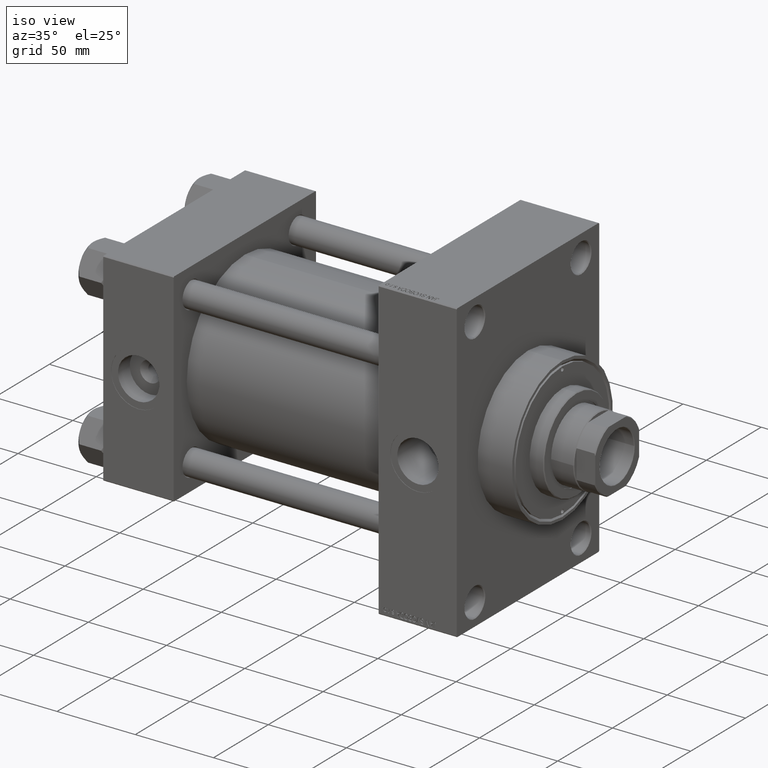
[diagram: clean part render]
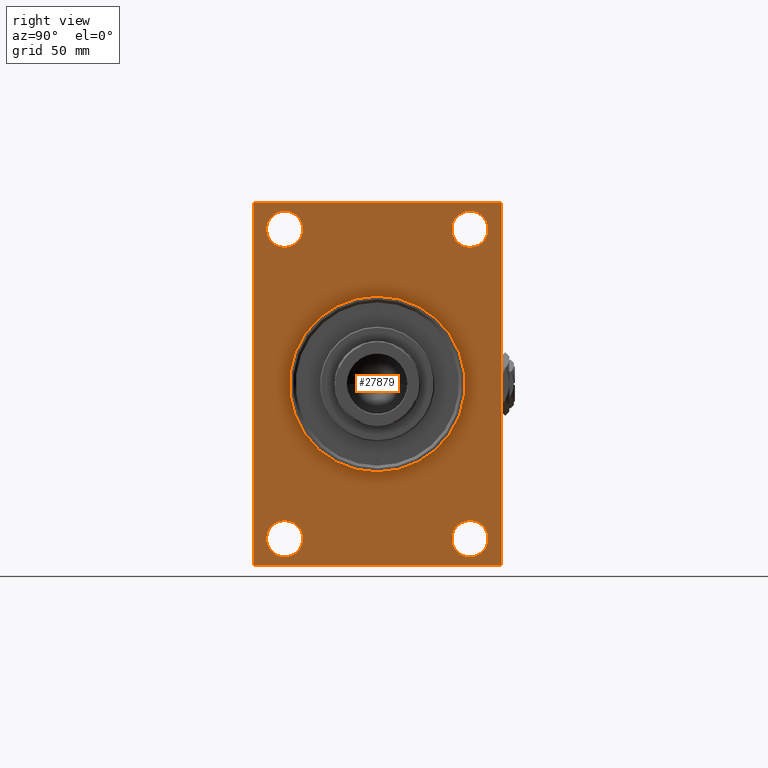
[diagram: tour spotlight — one face highlighted and labeled with its STEP entity id]
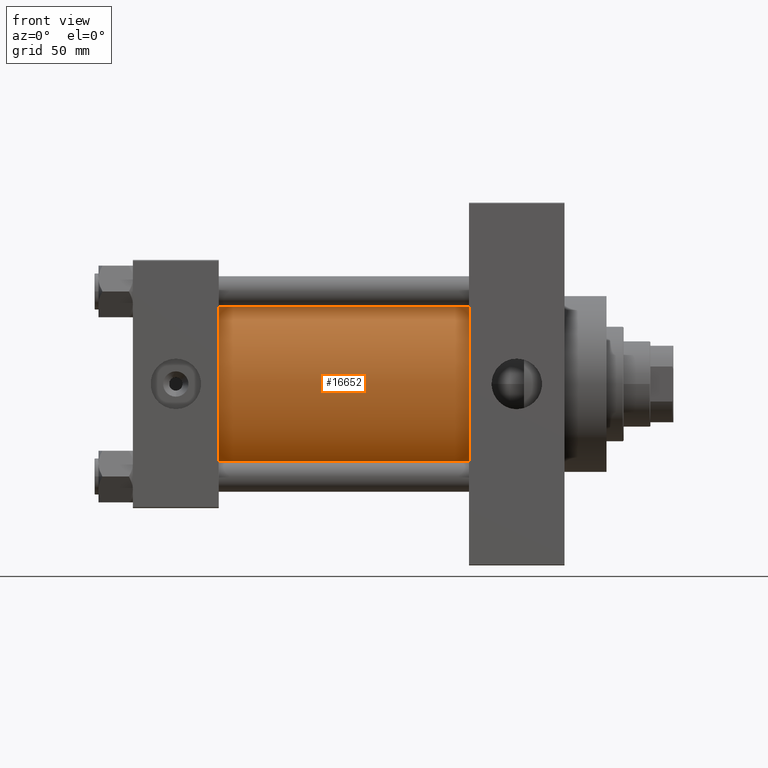
[diagram: tour spotlight — one face highlighted and labeled with its STEP entity id]
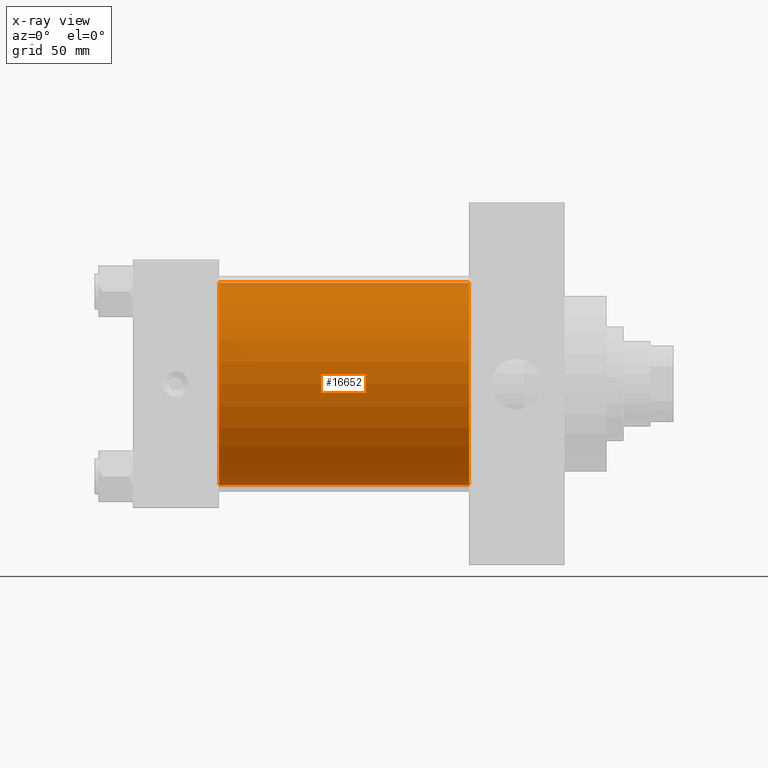
[diagram: x-ray of the same camera — body ghosted, this tour face saturated]
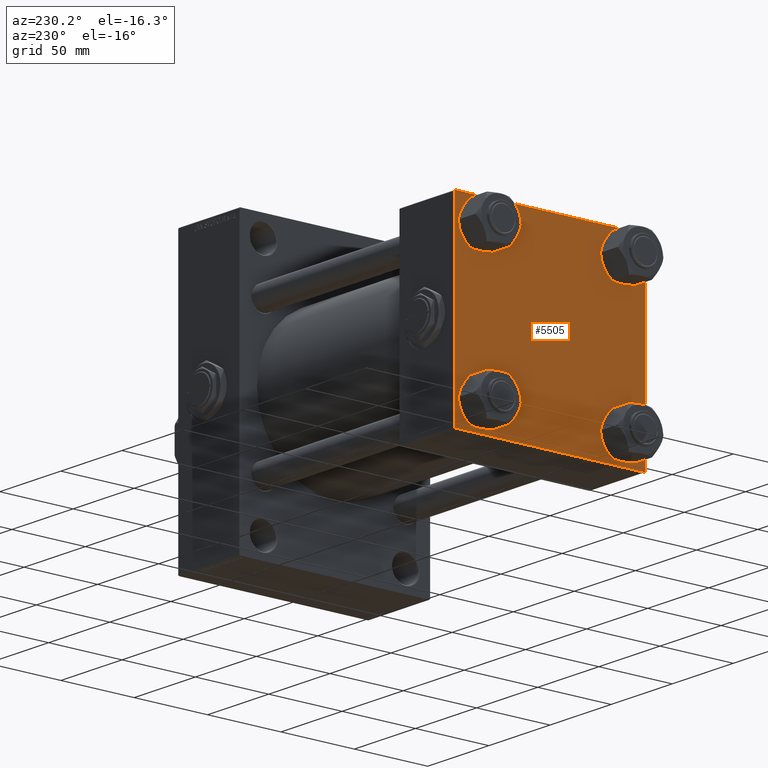
[diagram: tour spotlight — one face highlighted and labeled with its STEP entity id]
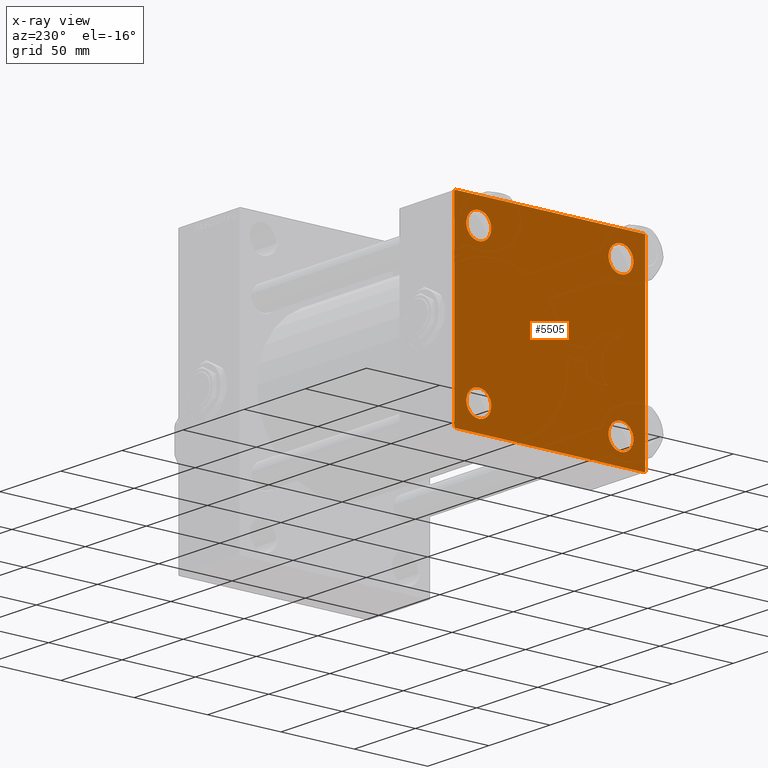
[diagram: x-ray of the same camera — body ghosted, this tour face saturated]
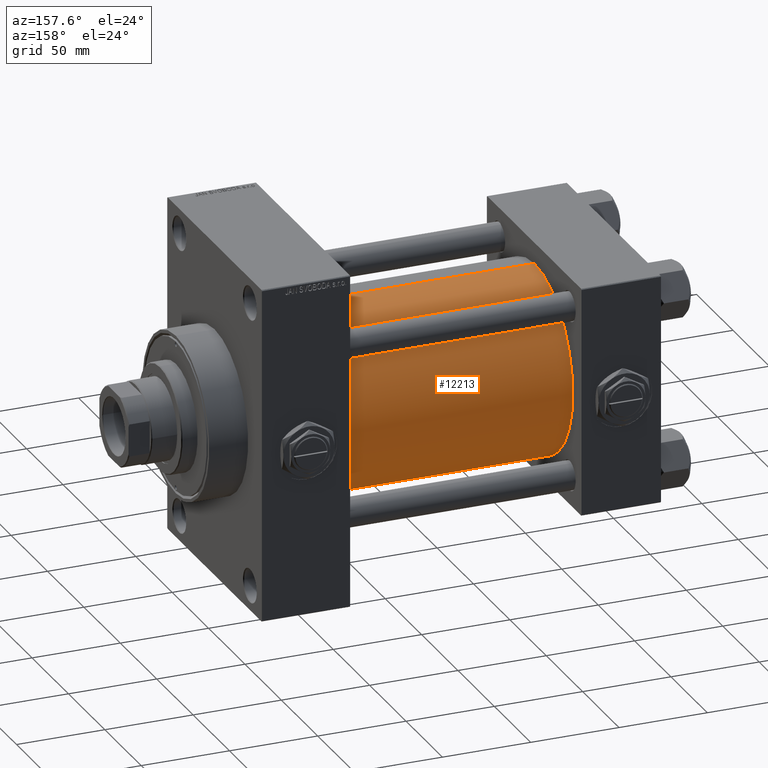
[diagram: tour spotlight — one face highlighted and labeled with its STEP entity id]
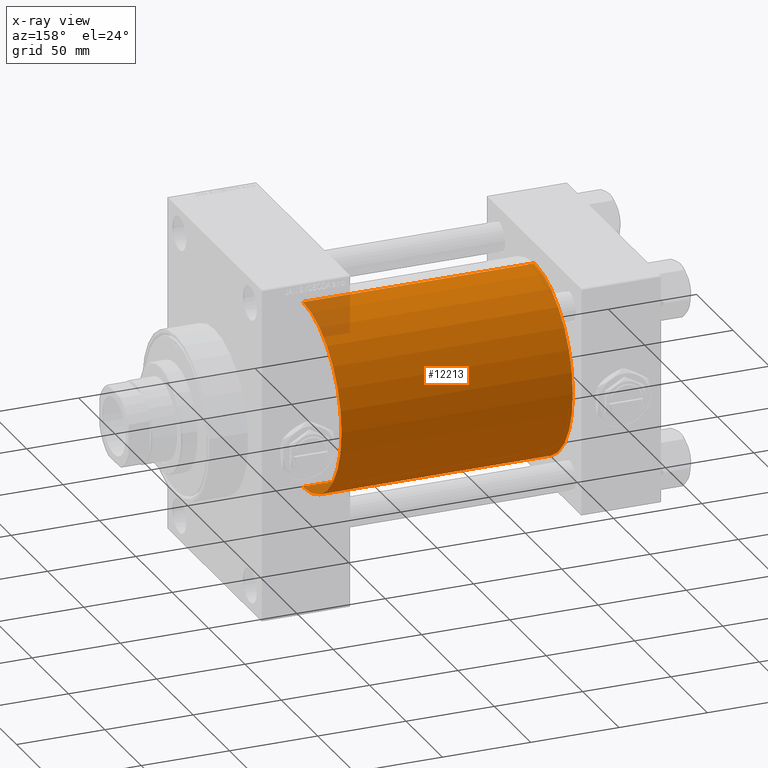
[diagram: x-ray of the same camera — body ghosted, this tour face saturated]
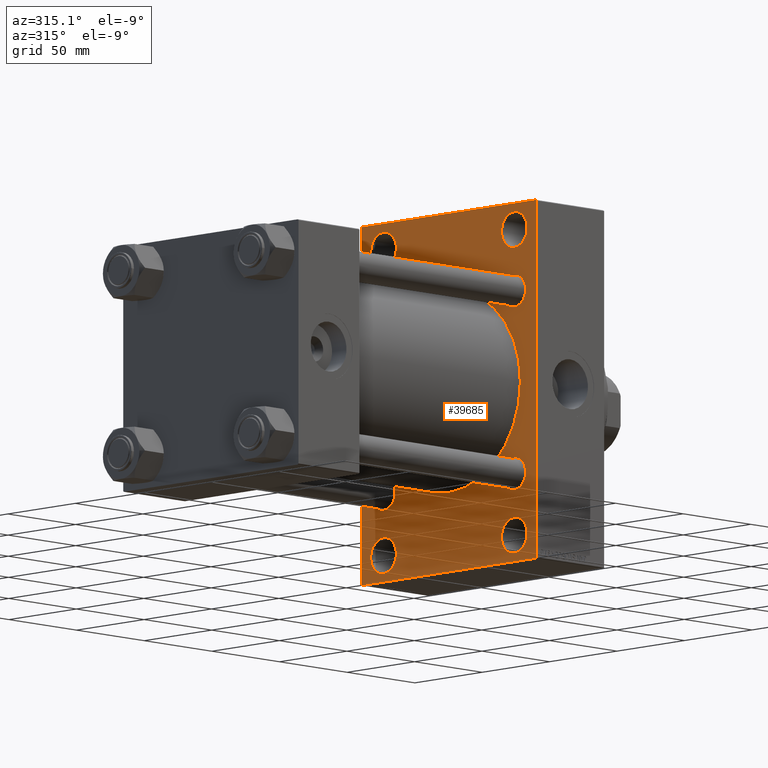
[diagram: tour spotlight — one face highlighted and labeled with its STEP entity id]
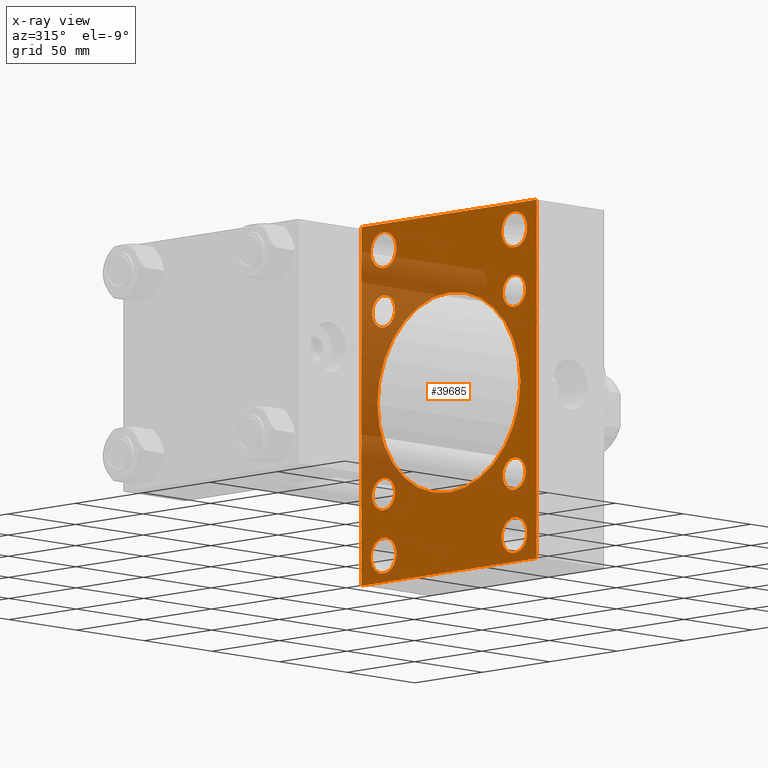
[diagram: x-ray of the same camera — body ghosted, this tour face saturated]
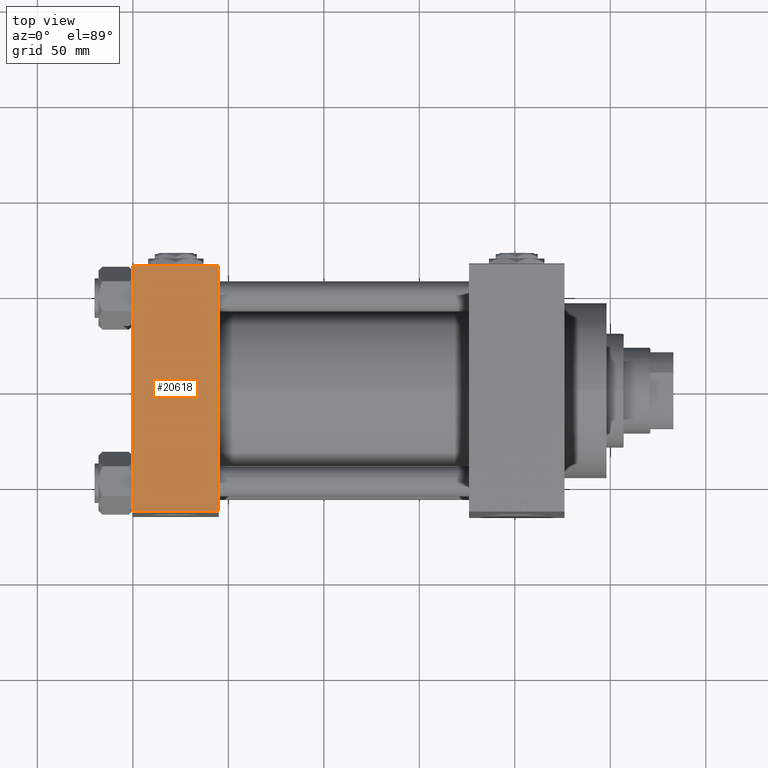
[diagram: tour spotlight — one face highlighted and labeled with its STEP entity id]
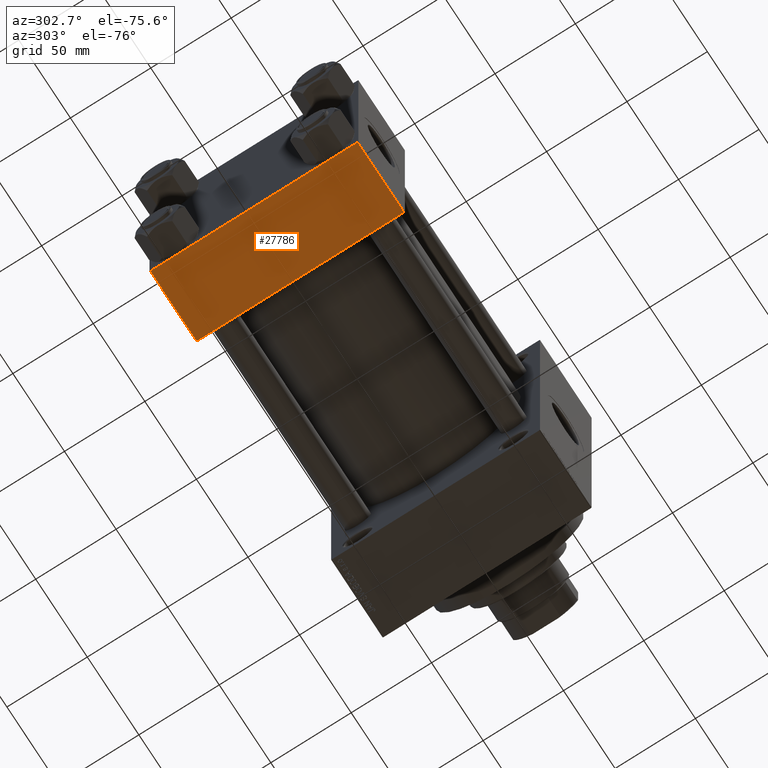
[diagram: tour spotlight — one face highlighted and labeled with its STEP entity id]
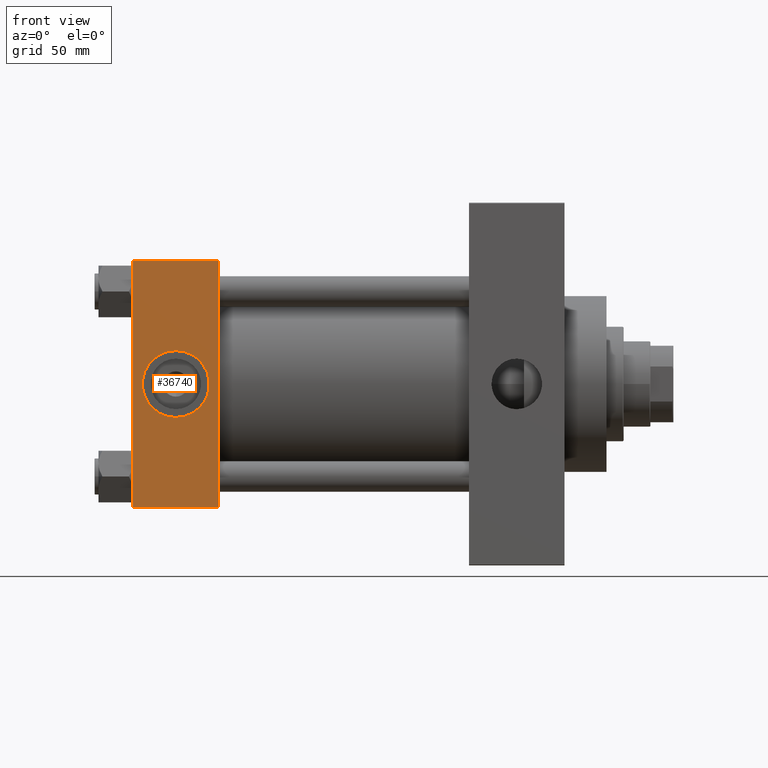
[diagram: tour spotlight — one face highlighted and labeled with its STEP entity id]
A machine part: a face-by-face anatomy tour. The part has 1261 B-rep faces; the first image is the clean iso view, then the 8 largest visible faces are spotlighted one at a time (largest first), each with its STEP entity span.

Face 1 — right view, entity #27879. In plain terms, the highlighted planar face has unit normal (-1, 0, 0).
Definition (entity closure, byte-faithful):
#153 = CARTESIAN_POINT ( 'NONE',  ( 225.9999999999999716, 0.000000000000000000, 46.00000000000000000 ) ) ;
#382 = DIRECTION ( 'NONE',  ( -1.000000000000000000, 0.000000000000000000, -0.000000000000000000 ) ) ;
#615 = EDGE_CURVE ( 'NONE', #32640, #20729, #25715, .T. ) ;
#634 = EDGE_LOOP ( 'NONE', ( #35615, #24480 ) ) ;
#903 = DIRECTION ( 'NONE',  ( 0.000000000000000000, -0.7071067811865474617, 0.7071067811865474617 ) ) ;
#1047 = EDGE_CURVE ( 'NONE', #17462, #48407, #25750, .T. ) ;
#1166 = CARTESIAN_POINT ( 'NONE',  ( 225.9999999999999716, -48.50000000000000000, 90.49999999999998579 ) ) ;
#1551 = AXIS2_PLACEMENT_3D ( 'NONE', #22571, #34956, #26625 ) ;
#1609 = VERTEX_POINT ( 'NONE', #16670 ) ;
#1912 = ORIENTED_EDGE ( 'NONE', *, *, #44064, .T. ) ;
#1984 = DIRECTION ( 'NONE',  ( 1.000000000000000000, 0.000000000000000000, 0.000000000000000000 ) ) ;
#2501 = CARTESIAN_POINT ( 'NONE',  ( 225.9999999999999716, 64.99999999999998579, -94.50000000000002842 ) ) ;
#2856 = ORIENTED_EDGE ( 'NONE', *, *, #46485, .T. ) ;
#2875 = FACE_BOUND ( 'NONE', #634, .T. ) ;
#3113 = CARTESIAN_POINT ( 'NONE',  ( 225.9999999999999716, 0.000000000000000000, 0.000000000000000000 ) ) ;
#3319 = EDGE_CURVE ( 'NONE', #25496, #41134, #11081, .T. ) ;
#3342 = DIRECTION ( 'NONE',  ( 0.000000000000000000, 0.000000000000000000, 1.000000000000000000 ) ) ;
#3363 = FACE_OUTER_BOUND ( 'NONE', #8648, .T. ) ;
#3639 = CARTESIAN_POINT ( 'NONE',  ( 225.9999999999999716, 64.99999999999997158, 94.49999999999997158 ) ) ;
#4716 = CARTESIAN_POINT ( 'NONE',  ( 225.9999999999999716, 48.50000000000000711, -81.00000000000001421 ) ) ;
#5307 = CARTESIAN_POINT ( 'NONE',  ( 225.9999999999999716, -64.50000000000007105, -95.00000000000002842 ) ) ;
#5329 = ORIENTED_EDGE ( 'NONE', *, *, #32336, .F. ) ;
#5681 = CARTESIAN_POINT ( 'NONE',  ( 225.9999999999999716, 64.99999999999998579, -95.00000000000001421 ) ) ;
#5815 = AXIS2_PLACEMENT_3D ( 'NONE', #3113, #29910, #6905 ) ;
#5989 = CIRCLE ( 'NONE', #18118, 9.499999999999980460 ) ;
#6165 = CARTESIAN_POINT ( 'NONE',  ( 225.9999999999999716, -48.50000000000000000, 81.00000000000000000 ) ) ;
#6410 = VERTEX_POINT ( 'NONE', #23295 ) ;
#6630 = VECTOR ( 'NONE', #40833, 1000.000000000000000 ) ;
#6855 = EDGE_CURVE ( 'NONE', #13618, #35284, #24759, .T. ) ;
#6905 = DIRECTION ( 'NONE',  ( -0.000000000000000000, 0.000000000000000000, 1.000000000000000000 ) ) ;
#7120 = CARTESIAN_POINT ( 'NONE',  ( 225.9999999999999716, 48.50000000000000711, -81.00000000000001421 ) ) ;
#7638 = PLANE ( 'NONE',  #5815 ) ;
#7961 = CARTESIAN_POINT ( 'NONE',  ( 225.9999999999999716, 64.49999999999997158, 94.99999999999997158 ) ) ;
#8648 = EDGE_LOOP ( 'NONE', ( #29775, #15113, #5329, #24018, #14603, #46173, #2856, #11107 ) ) ;
#9106 = ORIENTED_EDGE ( 'NONE', *, *, #10353, .F. ) ;
#9915 = AXIS2_PLACEMENT_3D ( 'NONE', #47997, #1984, #29002 ) ;
#10353 = EDGE_CURVE ( 'NONE', #32680, #13151, #25278, .T. ) ;
#10391 = EDGE_LOOP ( 'NONE', ( #35925, #34278 ) ) ;
#10410 = VERTEX_POINT ( 'NONE', #1166 ) ;
#11081 = LINE ( 'NONE', #21944, #19336 ) ;
#11107 = ORIENTED_EDGE ( 'NONE', *, *, #47214, .T. ) ;
#11114 = DIRECTION ( 'NONE',  ( 1.000000000000000000, 0.000000000000000000, 0.000000000000000000 ) ) ;
#11353 = CARTESIAN_POINT ( 'NONE',  ( 225.9999999999999716, 0.000000000000000000, 0.000000000000000000 ) ) ;
#12001 = LINE ( 'NONE', #7961, #28002 ) ;
#13151 = VERTEX_POINT ( 'NONE', #153 ) ;
#13172 = CARTESIAN_POINT ( 'NONE',  ( 225.9999999999999716, -65.00000000000001421, 94.50000000000000000 ) ) ;
#13618 = VERTEX_POINT ( 'NONE', #37203 ) ;
#14018 = EDGE_LOOP ( 'NONE', ( #45521, #38253 ) ) ;
#14477 = FACE_BOUND ( 'NONE', #10391, .T. ) ;
#14550 = CIRCLE ( 'NONE', #28270, 9.499999999999980460 ) ;
#14603 = ORIENTED_EDGE ( 'NONE', *, *, #30597, .F. ) ;
#14660 = VECTOR ( 'NONE', #44527, 1000.000000000000000 ) ;
#14979 = CIRCLE ( 'NONE', #49724, 9.499999999999980460 ) ;
#15113 = ORIENTED_EDGE ( 'NONE', *, *, #31707, .T. ) ;
#15768 = DIRECTION ( 'NONE',  ( 0.000000000000000000, 0.000000000000000000, 1.000000000000000000 ) ) ;
#16569 = EDGE_CURVE ( 'NONE', #10410, #1609, #5989, .T. ) ;
#16670 = CARTESIAN_POINT ( 'NONE',  ( 225.9999999999999716, -48.50000000000000000, 71.50000000000002842 ) ) ;
#17027 = CARTESIAN_POINT ( 'NONE',  ( 225.9999999999999716, -48.49999999999999289, -90.50000000000000000 ) ) ;
#17213 = CARTESIAN_POINT ( 'NONE',  ( 225.9999999999999716, 64.99999999999997158, 94.99999999999997158 ) ) ;
#17446 = CARTESIAN_POINT ( 'NONE',  ( 225.9999999999999716, 48.50000000000000711, -71.50000000000004263 ) ) ;
#17462 = VERTEX_POINT ( 'NONE', #17027 ) ;
#17655 = DIRECTION ( 'NONE',  ( 0.000000000000000000, 0.000000000000000000, -1.000000000000000000 ) ) ;
#18050 = DIRECTION ( 'NONE',  ( 0.000000000000000000, 0.000000000000000000, 1.000000000000000000 ) ) ;
#18118 = AXIS2_PLACEMENT_3D ( 'NONE', #6165, #40576, #18050 ) ;
#18631 = DIRECTION ( 'NONE',  ( 0.000000000000000000, 0.000000000000000000, 1.000000000000000000 ) ) ;
#18760 = ORIENTED_EDGE ( 'NONE', *, *, #30650, .F. ) ;
#19336 = VECTOR ( 'NONE', #17655, 1000.000000000000000 ) ;
#20015 = VECTOR ( 'NONE', #25626, 1000.000000000000114 ) ;
#20729 = VERTEX_POINT ( 'NONE', #30750 ) ;
#20988 = CARTESIAN_POINT ( 'NONE',  ( 225.9999999999999716, -64.50000000000002842, 94.99999999999997158 ) ) ;
#21397 = AXIS2_PLACEMENT_3D ( 'NONE', #7120, #37983, #3342 ) ;
#21944 = CARTESIAN_POINT ( 'NONE',  ( 225.9999999999999716, -65.00000000000001421, 94.99999999999997158 ) ) ;
#22224 = CARTESIAN_POINT ( 'NONE',  ( 225.9999999999999716, -64.50000000000007105, -95.00000000000002842 ) ) ;
#22571 = CARTESIAN_POINT ( 'NONE',  ( 225.9999999999999716, -48.49999999999999289, -81.00000000000001421 ) ) ;
#23273 = AXIS2_PLACEMENT_3D ( 'NONE', #4716, #42665, #38855 ) ;
#23295 = CARTESIAN_POINT ( 'NONE',  ( 225.9999999999999716, 48.50000000000000711, 90.49999999999998579 ) ) ;
#23297 = FACE_BOUND ( 'NONE', #40855, .T. ) ;
#23904 = AXIS2_PLACEMENT_3D ( 'NONE', #27761, #46500, #31553 ) ;
#23917 = CARTESIAN_POINT ( 'NONE',  ( 225.9999999999999716, 48.50000000000000711, 71.50000000000002842 ) ) ;
#24018 = ORIENTED_EDGE ( 'NONE', *, *, #6855, .T. ) ;
#24033 = EDGE_CURVE ( 'NONE', #1609, #10410, #14550, .T. ) ;
#24262 = DIRECTION ( 'NONE',  ( 0.000000000000000000, 0.7071067811865474617, -0.7071067811865474617 ) ) ;
#24480 = ORIENTED_EDGE ( 'NONE', *, *, #615, .T. ) ;
#24735 = CIRCLE ( 'NONE', #46540, 9.499999999999980460 ) ;
#24759 = LINE ( 'NONE', #2501, #40473 ) ;
#25278 = CIRCLE ( 'NONE', #9915, 46.00000000000000000 ) ;
#25496 = VERTEX_POINT ( 'NONE', #13172 ) ;
#25626 = DIRECTION ( 'NONE',  ( -0.000000000000000000, -0.7071067811865573427, -0.7071067811865376918 ) ) ;
#25715 = CIRCLE ( 'NONE', #23273, 9.499999999999980460 ) ;
#25719 = VECTOR ( 'NONE', #38168, 1000.000000000000000 ) ;
#25750 = CIRCLE ( 'NONE', #1551, 9.499999999999980460 ) ;
#25759 = DIRECTION ( 'NONE',  ( -0.000000000000000000, 0.7071067811865573427, 0.7071067811865378028 ) ) ;
#26625 = DIRECTION ( 'NONE',  ( 0.000000000000000000, 0.000000000000000000, 1.000000000000000000 ) ) ;
#26858 = LINE ( 'NONE', #37925, #25719 ) ;
#27401 = VERTEX_POINT ( 'NONE', #23917 ) ;
#27761 = CARTESIAN_POINT ( 'NONE',  ( 225.9999999999999716, -48.49999999999999289, -81.00000000000001421 ) ) ;
#27879 = ADVANCED_FACE ( 'NONE', ( #49141, #23297, #2875, #14477, #42303, #3363 ), #7638, .F. ) ;
#28002 = VECTOR ( 'NONE', #903, 1000.000000000000114 ) ;
#28062 = LINE ( 'NONE', #5307, #43765 ) ;
#28270 = AXIS2_PLACEMENT_3D ( 'NONE', #42590, #382, #15768 ) ;
#28542 = VERTEX_POINT ( 'NONE', #22224 ) ;
#28691 = LINE ( 'NONE', #32733, #20015 ) ;
#29002 = DIRECTION ( 'NONE',  ( 0.000000000000000000, 0.000000000000000000, -1.000000000000000000 ) ) ;
#29775 = ORIENTED_EDGE ( 'NONE', *, *, #3319, .T. ) ;
#29873 = DIRECTION ( 'NONE',  ( -1.000000000000000000, 0.000000000000000000, -0.000000000000000000 ) ) ;
#29910 = DIRECTION ( 'NONE',  ( -1.000000000000000000, 0.000000000000000000, -0.000000000000000000 ) ) ;
#30597 = EDGE_CURVE ( 'NONE', #45228, #35284, #44286, .T. ) ;
#30650 = EDGE_CURVE ( 'NONE', #13151, #32680, #48560, .T. ) ;
#30750 = CARTESIAN_POINT ( 'NONE',  ( 225.9999999999999716, 48.50000000000000711, -90.50000000000000000 ) ) ;
#31553 = DIRECTION ( 'NONE',  ( 0.000000000000000000, 0.000000000000000000, 1.000000000000000000 ) ) ;
#31707 = EDGE_CURVE ( 'NONE', #41134, #28542, #28062, .T. ) ;
#32336 = EDGE_CURVE ( 'NONE', #13618, #28542, #48929, .T. ) ;
#32640 = VERTEX_POINT ( 'NONE', #17446 ) ;
#32680 = VERTEX_POINT ( 'NONE', #44515 ) ;
#32733 = CARTESIAN_POINT ( 'NONE',  ( 225.9999999999999716, -65.00000000000001421, 94.50000000000000000 ) ) ;
#34278 = ORIENTED_EDGE ( 'NONE', *, *, #42802, .T. ) ;
#34383 = VERTEX_POINT ( 'NONE', #20988 ) ;
#34444 = CIRCLE ( 'NONE', #23904, 9.499999999999980460 ) ;
#34956 = DIRECTION ( 'NONE',  ( -1.000000000000000000, 0.000000000000000000, -0.000000000000000000 ) ) ;
#35284 = VERTEX_POINT ( 'NONE', #42842 ) ;
#35615 = ORIENTED_EDGE ( 'NONE', *, *, #38102, .T. ) ;
#35688 = CARTESIAN_POINT ( 'NONE',  ( 225.9999999999999716, -65.00000000000001421, -94.50000000000008527 ) ) ;
#35925 = ORIENTED_EDGE ( 'NONE', *, *, #39715, .T. ) ;
#37203 = CARTESIAN_POINT ( 'NONE',  ( 225.9999999999999716, 64.49999999999998579, -95.00000000000001421 ) ) ;
#37545 = EDGE_LOOP ( 'NONE', ( #18760, #9106 ) ) ;
#37925 = CARTESIAN_POINT ( 'NONE',  ( 225.9999999999999716, 64.99999999999997158, 94.99999999999997158 ) ) ;
#37983 = DIRECTION ( 'NONE',  ( -1.000000000000000000, 0.000000000000000000, -0.000000000000000000 ) ) ;
#38102 = EDGE_CURVE ( 'NONE', #20729, #32640, #48074, .T. ) ;
#38168 = DIRECTION ( 'NONE',  ( 0.000000000000000000, -1.000000000000000000, 0.000000000000000000 ) ) ;
#38224 = CARTESIAN_POINT ( 'NONE',  ( 225.9999999999999716, 48.50000000000000711, 81.00000000000000000 ) ) ;
#38253 = ORIENTED_EDGE ( 'NONE', *, *, #16569, .T. ) ;
#38594 = DIRECTION ( 'NONE',  ( -1.000000000000000000, 0.000000000000000000, -0.000000000000000000 ) ) ;
#38855 = DIRECTION ( 'NONE',  ( 0.000000000000000000, 0.000000000000000000, 1.000000000000000000 ) ) ;
#39715 = EDGE_CURVE ( 'NONE', #27401, #6410, #24735, .T. ) ;
#40030 = VERTEX_POINT ( 'NONE', #41615 ) ;
#40473 = VECTOR ( 'NONE', #25759, 1000.000000000000000 ) ;
#40576 = DIRECTION ( 'NONE',  ( -1.000000000000000000, 0.000000000000000000, -0.000000000000000000 ) ) ;
#40833 = DIRECTION ( 'NONE',  ( 0.000000000000000000, -1.000000000000000000, -1.067522139062650425E-16 ) ) ;
#40855 = EDGE_LOOP ( 'NONE', ( #41163, #1912 ) ) ;
#41134 = VERTEX_POINT ( 'NONE', #35688 ) ;
#41163 = ORIENTED_EDGE ( 'NONE', *, *, #1047, .T. ) ;
#41615 = CARTESIAN_POINT ( 'NONE',  ( 225.9999999999999716, 64.49999999999997158, 94.99999999999997158 ) ) ;
#42303 = FACE_BOUND ( 'NONE', #37545, .T. ) ;
#42590 = CARTESIAN_POINT ( 'NONE',  ( 225.9999999999999716, -48.50000000000000000, 81.00000000000000000 ) ) ;
#42665 = DIRECTION ( 'NONE',  ( -1.000000000000000000, 0.000000000000000000, -0.000000000000000000 ) ) ;
#42802 = EDGE_CURVE ( 'NONE', #6410, #27401, #14979, .T. ) ;
#42842 = CARTESIAN_POINT ( 'NONE',  ( 225.9999999999999716, 64.99999999999998579, -94.50000000000002842 ) ) ;
#42925 = AXIS2_PLACEMENT_3D ( 'NONE', #11353, #11114, #49821 ) ;
#43765 = VECTOR ( 'NONE', #24262, 1000.000000000000114 ) ;
#44064 = EDGE_CURVE ( 'NONE', #48407, #17462, #34444, .T. ) ;
#44286 = LINE ( 'NONE', #17213, #14660 ) ;
#44316 = CARTESIAN_POINT ( 'NONE',  ( 225.9999999999999716, -48.49999999999999289, -71.50000000000004263 ) ) ;
#44515 = CARTESIAN_POINT ( 'NONE',  ( 225.9999999999999716, 5.633375276077824704E-15, -46.00000000000000000 ) ) ;
#44527 = DIRECTION ( 'NONE',  ( 0.000000000000000000, 7.304098846218135653E-17, -1.000000000000000000 ) ) ;
#45228 = VERTEX_POINT ( 'NONE', #3639 ) ;
#45521 = ORIENTED_EDGE ( 'NONE', *, *, #24033, .T. ) ;
#45755 = EDGE_CURVE ( 'NONE', #45228, #40030, #12001, .T. ) ;
#46173 = ORIENTED_EDGE ( 'NONE', *, *, #45755, .T. ) ;
#46485 = EDGE_CURVE ( 'NONE', #40030, #34383, #26858, .T. ) ;
#46500 = DIRECTION ( 'NONE',  ( -1.000000000000000000, 0.000000000000000000, -0.000000000000000000 ) ) ;
#46540 = AXIS2_PLACEMENT_3D ( 'NONE', #46688, #38594, #18631 ) ;
#46688 = CARTESIAN_POINT ( 'NONE',  ( 225.9999999999999716, 48.50000000000000711, 81.00000000000000000 ) ) ;
#47214 = EDGE_CURVE ( 'NONE', #34383, #25496, #28691, .T. ) ;
#47997 = CARTESIAN_POINT ( 'NONE',  ( 225.9999999999999716, 0.000000000000000000, 0.000000000000000000 ) ) ;
#48074 = CIRCLE ( 'NONE', #21397, 9.499999999999980460 ) ;
#48407 = VERTEX_POINT ( 'NONE', #44316 ) ;
#48560 = CIRCLE ( 'NONE', #42925, 46.00000000000000000 ) ;
#48929 = LINE ( 'NONE', #5681, #6630 ) ;
#49141 = FACE_BOUND ( 'NONE', #14018, .T. ) ;
#49357 = DIRECTION ( 'NONE',  ( 0.000000000000000000, 0.000000000000000000, 1.000000000000000000 ) ) ;
#49724 = AXIS2_PLACEMENT_3D ( 'NONE', #38224, #29873, #49357 ) ;
#49821 = DIRECTION ( 'NONE',  ( 0.000000000000000000, 0.000000000000000000, -1.000000000000000000 ) ) ;

Face 2 — front view, entity #16652. An x-ray twin of the same camera follows (body ghosted, this face saturated) — the face is partly hidden behind the body. In plain terms, the highlighted cylindrical surface (partial cylindrical patch) has radius 53 mm, axis along (-1, -0, -0).
Definition (entity closure, byte-faithful):
#351 = AXIS2_PLACEMENT_3D ( 'NONE', #9960, #45123, #48659 ) ;
#715 = VECTOR ( 'NONE', #43269, 1000.000000000000000 ) ;
#1721 = VERTEX_POINT ( 'NONE', #20067 ) ;
#2192 = CARTESIAN_POINT ( 'NONE',  ( 176.0000000000000000, 3.888542821515762466E-15, -53.00000000000000711 ) ) ;
#3879 = ORIENTED_EDGE ( 'NONE', *, *, #47006, .T. ) ;
#9227 = DIRECTION ( 'NONE',  ( 0.000000000000000000, 0.000000000000000000, -1.000000000000000000 ) ) ;
#9363 = LINE ( 'NONE', #28325, #715 ) ;
#9505 = DIRECTION ( 'NONE',  ( -1.000000000000000000, -0.000000000000000000, -0.000000000000000000 ) ) ;
#9960 = CARTESIAN_POINT ( 'NONE',  ( 44.99999999999998579, -2.602085213965210642E-15, 0.000000000000000000 ) ) ;
#10715 = DIRECTION ( 'NONE',  ( 0.000000000000000000, 0.000000000000000000, 1.000000000000000000 ) ) ;
#16652 = ADVANCED_FACE ( 'NONE', ( #21583 ), #33493, .T. ) ;
#16715 = EDGE_CURVE ( 'NONE', #42330, #21605, #48817, .T. ) ;
#17793 = DIRECTION ( 'NONE',  ( -1.000000000000000000, -0.000000000000000000, -0.000000000000000000 ) ) ;
#18180 = ORIENTED_EDGE ( 'NONE', *, *, #16715, .T. ) ;
#18337 = LINE ( 'NONE', #2192, #31624 ) ;
#20067 = CARTESIAN_POINT ( 'NONE',  ( 176.0000000000000000, 3.888542821515762466E-15, -53.00000000000000711 ) ) ;
#21181 = AXIS2_PLACEMENT_3D ( 'NONE', #35531, #39563, #9227 ) ;
#21583 = FACE_OUTER_BOUND ( 'NONE', #35050, .T. ) ;
#21605 = VERTEX_POINT ( 'NONE', #38826 ) ;
#22743 = VERTEX_POINT ( 'NONE', #25337 ) ;
#24584 = AXIS2_PLACEMENT_3D ( 'NONE', #44876, #17793, #10715 ) ;
#25337 = CARTESIAN_POINT ( 'NONE',  ( 176.0000000000000000, -2.602085213965210642E-15, 53.00000000000000711 ) ) ;
#25637 = CARTESIAN_POINT ( 'NONE',  ( 44.99999999999998579, -2.602085213965210642E-15, 53.00000000000000711 ) ) ;
#27574 = EDGE_CURVE ( 'NONE', #1721, #21605, #18337, .T. ) ;
#28325 = CARTESIAN_POINT ( 'NONE',  ( 176.0000000000000000, -2.602085213965210642E-15, 53.00000000000000711 ) ) ;
#28661 = ORIENTED_EDGE ( 'NONE', *, *, #27574, .F. ) ;
#31624 = VECTOR ( 'NONE', #9505, 1000.000000000000000 ) ;
#32236 = EDGE_CURVE ( 'NONE', #22743, #1721, #48627, .T. ) ;
#33493 = CYLINDRICAL_SURFACE ( 'NONE', #24584, 53.00000000000000711 ) ;
#35050 = EDGE_LOOP ( 'NONE', ( #28661, #38693, #3879, #18180 ) ) ;
#35531 = CARTESIAN_POINT ( 'NONE',  ( 176.0000000000000000, -2.602085213965210642E-15, 0.000000000000000000 ) ) ;
#38693 = ORIENTED_EDGE ( 'NONE', *, *, #32236, .F. ) ;
#38826 = CARTESIAN_POINT ( 'NONE',  ( 44.99999999999998579, 3.888542821515762466E-15, -53.00000000000000711 ) ) ;
#39563 = DIRECTION ( 'NONE',  ( 1.000000000000000000, 0.000000000000000000, 0.000000000000000000 ) ) ;
#42330 = VERTEX_POINT ( 'NONE', #25637 ) ;
#43269 = DIRECTION ( 'NONE',  ( -1.000000000000000000, -0.000000000000000000, -0.000000000000000000 ) ) ;
#44876 = CARTESIAN_POINT ( 'NONE',  ( 176.0000000000000000, -2.602085213965210642E-15, 0.000000000000000000 ) ) ;
#45123 = DIRECTION ( 'NONE',  ( 1.000000000000000000, -0.000000000000000000, 0.000000000000000000 ) ) ;
#47006 = EDGE_CURVE ( 'NONE', #22743, #42330, #9363, .T. ) ;
#48627 = CIRCLE ( 'NONE', #21181, 53.00000000000000711 ) ;
#48659 = DIRECTION ( 'NONE',  ( 0.000000000000000000, 0.000000000000000000, 1.000000000000000000 ) ) ;
#48817 = CIRCLE ( 'NONE', #351, 53.00000000000000711 ) ;

Face 3 — auxiliary view, entity #5505. An x-ray twin of the same camera follows (body ghosted, this face saturated) — the face is partly hidden behind the body. In plain terms, the highlighted planar face has unit normal (-1, 0, 0).
Definition (entity closure, byte-faithful):
#146 = CARTESIAN_POINT ( 'NONE',  ( 0.000000000000000000, -64.49999999999994316, -65.00000000000000000 ) ) ;
#293 = CARTESIAN_POINT ( 'NONE',  ( 0.000000000000000000, -48.44999999999999574, -48.45000000000003126 ) ) ;
#306 = DIRECTION ( 'NONE',  ( 0.000000000000000000, 0.000000000000000000, 1.000000000000000000 ) ) ;
#1925 = ORIENTED_EDGE ( 'NONE', *, *, #2969, .F. ) ;
#2476 = ORIENTED_EDGE ( 'NONE', *, *, #9884, .T. ) ;
#2969 = EDGE_CURVE ( 'NONE', #21867, #35791, #37065, .T. ) ;
#3356 = FACE_BOUND ( 'NONE', #15006, .T. ) ;
#3613 = FACE_BOUND ( 'NONE', #4881, .T. ) ;
#3632 = CARTESIAN_POINT ( 'NONE',  ( 0.000000000000000000, 64.74999999999997158, -64.74999999999997158 ) ) ;
#3992 = DIRECTION ( 'NONE',  ( 0.000000000000000000, 0.000000000000000000, 1.000000000000000000 ) ) ;
#4079 = CIRCLE ( 'NONE', #22670, 8.500000000000007105 ) ;
#4084 = CARTESIAN_POINT ( 'NONE',  ( 0.000000000000000000, -48.44999999999999574, -56.95000000000003837 ) ) ;
#4244 = CARTESIAN_POINT ( 'NONE',  ( 0.000000000000000000, 48.45000000000000995, -39.95000000000000284 ) ) ;
#4446 = ORIENTED_EDGE ( 'NONE', *, *, #6427, .T. ) ;
#4625 = VERTEX_POINT ( 'NONE', #13800 ) ;
#4881 = EDGE_LOOP ( 'NONE', ( #7204, #38514 ) ) ;
#5481 = DIRECTION ( 'NONE',  ( 0.000000000000000000, -1.000000000000000000, -1.067522139062650425E-16 ) ) ;
#5505 = ADVANCED_FACE ( 'NONE', ( #10940, #3613, #26852, #3356, #49133 ), #34214, .T. ) ;
#6168 = CARTESIAN_POINT ( 'NONE',  ( 0.000000000000000000, 48.45000000000000995, -48.45000000000001705 ) ) ;
#6215 = LINE ( 'NONE', #40637, #42215 ) ;
#6427 = EDGE_CURVE ( 'NONE', #28326, #35791, #15722, .T. ) ;
#7204 = ORIENTED_EDGE ( 'NONE', *, *, #26627, .T. ) ;
#7870 = DIRECTION ( 'NONE',  ( 0.000000000000000000, 0.000000000000000000, 1.000000000000000000 ) ) ;
#9095 = CIRCLE ( 'NONE', #41430, 8.500000000000007105 ) ;
#9167 = ORIENTED_EDGE ( 'NONE', *, *, #45900, .T. ) ;
#9265 = EDGE_CURVE ( 'NONE', #38863, #28326, #6215, .T. ) ;
#9884 = EDGE_CURVE ( 'NONE', #16789, #38863, #22829, .T. ) ;
#10250 = CARTESIAN_POINT ( 'NONE',  ( 0.000000000000000000, -65.00000000000000000, 65.00000000000000000 ) ) ;
#10682 = CIRCLE ( 'NONE', #47739, 8.500000000000007105 ) ;
#10940 = FACE_BOUND ( 'NONE', #42735, .T. ) ;
#11494 = LINE ( 'NONE', #26931, #41348 ) ;
#11941 = CARTESIAN_POINT ( 'NONE',  ( 0.000000000000000000, 65.00000000000000000, -64.49999999999995737 ) ) ;
#11973 = CARTESIAN_POINT ( 'NONE',  ( 0.000000000000000000, 64.49999999999997158, 65.00000000000001421 ) ) ;
#12026 = VERTEX_POINT ( 'NONE', #19145 ) ;
#12551 = CARTESIAN_POINT ( 'NONE',  ( 0.000000000000000000, 48.45000000000000995, 39.95000000000000284 ) ) ;
#12556 = CARTESIAN_POINT ( 'NONE',  ( 0.000000000000000000, 65.00000000000000000, 65.00000000000001421 ) ) ;
#13244 = DIRECTION ( 'NONE',  ( 0.000000000000000000, 0.7071067811865474617, -0.7071067811865474617 ) ) ;
#13449 = CIRCLE ( 'NONE', #41746, 8.500000000000007105 ) ;
#13462 = CARTESIAN_POINT ( 'NONE',  ( 0.000000000000000000, 48.45000000000000995, -56.95000000000002416 ) ) ;
#13770 = VERTEX_POINT ( 'NONE', #25463 ) ;
#13800 = CARTESIAN_POINT ( 'NONE',  ( 0.000000000000000000, -48.44999999999999574, -39.95000000000001705 ) ) ;
#13978 = LINE ( 'NONE', #12556, #35156 ) ;
#14000 = DIRECTION ( 'NONE',  ( 1.000000000000000000, -0.000000000000000000, 0.000000000000000000 ) ) ;
#14328 = CARTESIAN_POINT ( 'NONE',  ( 0.000000000000000000, 48.45000000000000995, 56.95000000000002416 ) ) ;
#14469 = DIRECTION ( 'NONE',  ( -1.000000000000000000, 0.000000000000000000, -0.000000000000000000 ) ) ;
#14702 = CARTESIAN_POINT ( 'NONE',  ( 0.000000000000000000, -48.44999999999999574, 48.45000000000003126 ) ) ;
#15006 = EDGE_LOOP ( 'NONE', ( #40334, #27783 ) ) ;
#15342 = DIRECTION ( 'NONE',  ( 1.000000000000000000, -0.000000000000000000, 0.000000000000000000 ) ) ;
#15576 = ORIENTED_EDGE ( 'NONE', *, *, #9265, .T. ) ;
#15722 = LINE ( 'NONE', #31164, #21896 ) ;
#15915 = DIRECTION ( 'NONE',  ( 0.000000000000000000, 0.000000000000000000, 1.000000000000000000 ) ) ;
#16078 = VECTOR ( 'NONE', #18342, 1000.000000000000000 ) ;
#16356 = CARTESIAN_POINT ( 'NONE',  ( 0.000000000000000000, 48.45000000000000995, 48.45000000000001705 ) ) ;
#16789 = VERTEX_POINT ( 'NONE', #11941 ) ;
#17076 = CIRCLE ( 'NONE', #39705, 8.500000000000007105 ) ;
#18342 = DIRECTION ( 'NONE',  ( 0.000000000000000000, 0.000000000000000000, -1.000000000000000000 ) ) ;
#18605 = EDGE_CURVE ( 'NONE', #12026, #16789, #13978, .T. ) ;
#18621 = CARTESIAN_POINT ( 'NONE',  ( 0.000000000000000000, 65.00000000000000000, 65.00000000000001421 ) ) ;
#19005 = EDGE_CURVE ( 'NONE', #40518, #4625, #23052, .T. ) ;
#19145 = CARTESIAN_POINT ( 'NONE',  ( 0.000000000000000000, 65.00000000000000000, 64.49999999999998579 ) ) ;
#19251 = CARTESIAN_POINT ( 'NONE',  ( 0.000000000000000000, 0.000000000000000000, 0.000000000000000000 ) ) ;
#19492 = CARTESIAN_POINT ( 'NONE',  ( 0.000000000000000000, -48.44999999999999574, -48.45000000000003126 ) ) ;
#20821 = LINE ( 'NONE', #28165, #41715 ) ;
#21070 = VERTEX_POINT ( 'NONE', #42578 ) ;
#21587 = DIRECTION ( 'NONE',  ( 0.000000000000000000, 0.000000000000000000, 1.000000000000000000 ) ) ;
#21867 = VERTEX_POINT ( 'NONE', #29950 ) ;
#21896 = VECTOR ( 'NONE', #27350, 1000.000000000000000 ) ;
#22189 = CARTESIAN_POINT ( 'NONE',  ( 0.000000000000000000, 48.45000000000000995, -48.45000000000001705 ) ) ;
#22428 = ORIENTED_EDGE ( 'NONE', *, *, #33124, .F. ) ;
#22437 = DIRECTION ( 'NONE',  ( 0.000000000000000000, 0.000000000000000000, 1.000000000000000000 ) ) ;
#22670 = AXIS2_PLACEMENT_3D ( 'NONE', #22189, #15342, #22437 ) ;
#22829 = LINE ( 'NONE', #3632, #23625 ) ;
#22919 = ORIENTED_EDGE ( 'NONE', *, *, #41599, .T. ) ;
#23052 = CIRCLE ( 'NONE', #32752, 8.500000000000007105 ) ;
#23122 = DIRECTION ( 'NONE',  ( -0.000000000000000000, 0.7071067811865672237, 0.7071067811865279218 ) ) ;
#23625 = VECTOR ( 'NONE', #38271, 1000.000000000000114 ) ;
#24150 = ORIENTED_EDGE ( 'NONE', *, *, #28355, .T. ) ;
#24749 = EDGE_CURVE ( 'NONE', #21070, #13770, #25094, .T. ) ;
#25084 = EDGE_CURVE ( 'NONE', #33882, #31785, #4079, .T. ) ;
#25094 = CIRCLE ( 'NONE', #33179, 8.500000000000007105 ) ;
#25463 = CARTESIAN_POINT ( 'NONE',  ( 0.000000000000000000, -48.44999999999999574, 56.95000000000003837 ) ) ;
#25975 = LINE ( 'NONE', #18621, #44673 ) ;
#26627 = EDGE_CURVE ( 'NONE', #4625, #40518, #17076, .T. ) ;
#26852 = FACE_BOUND ( 'NONE', #31466, .T. ) ;
#26931 = CARTESIAN_POINT ( 'NONE',  ( -0.000000000000000000, -64.74999999999819522, 64.75000000000179057 ) ) ;
#27350 = DIRECTION ( 'NONE',  ( 0.000000000000000000, -0.7071067811865279218, 0.7071067811865671127 ) ) ;
#27783 = ORIENTED_EDGE ( 'NONE', *, *, #29052, .T. ) ;
#28151 = VERTEX_POINT ( 'NONE', #12551 ) ;
#28165 = CARTESIAN_POINT ( 'NONE',  ( 0.000000000000000000, 64.74999999999998579, 64.74999999999998579 ) ) ;
#28326 = VERTEX_POINT ( 'NONE', #146 ) ;
#28355 = EDGE_CURVE ( 'NONE', #21867, #48201, #11494, .T. ) ;
#29052 = EDGE_CURVE ( 'NONE', #28151, #44278, #10682, .T. ) ;
#29339 = DIRECTION ( 'NONE',  ( 0.000000000000000000, 0.000000000000000000, 1.000000000000000000 ) ) ;
#29950 = CARTESIAN_POINT ( 'NONE',  ( 0.000000000000000000, -65.00000000000000000, 64.50000000000000000 ) ) ;
#31135 = DIRECTION ( 'NONE',  ( 1.000000000000000000, -0.000000000000000000, 0.000000000000000000 ) ) ;
#31149 = CARTESIAN_POINT ( 'NONE',  ( 0.000000000000000000, 64.49999999999997158, -64.99999999999998579 ) ) ;
#31164 = CARTESIAN_POINT ( 'NONE',  ( 0.000000000000000000, -64.75000000000176215, -64.74999999999816680 ) ) ;
#31466 = EDGE_LOOP ( 'NONE', ( #9167, #47177 ) ) ;
#31785 = VERTEX_POINT ( 'NONE', #4244 ) ;
#32752 = AXIS2_PLACEMENT_3D ( 'NONE', #293, #43242, #15915 ) ;
#33124 = EDGE_CURVE ( 'NONE', #35194, #48201, #25975, .T. ) ;
#33179 = AXIS2_PLACEMENT_3D ( 'NONE', #49078, #40736, #29339 ) ;
#33882 = VERTEX_POINT ( 'NONE', #13462 ) ;
#34214 = PLANE ( 'NONE',  #43694 ) ;
#34686 = DIRECTION ( 'NONE',  ( 1.000000000000000000, -0.000000000000000000, 0.000000000000000000 ) ) ;
#35156 = VECTOR ( 'NONE', #35836, 1000.000000000000000 ) ;
#35194 = VERTEX_POINT ( 'NONE', #11973 ) ;
#35534 = CARTESIAN_POINT ( 'NONE',  ( 0.000000000000000000, 48.45000000000000995, 48.45000000000001705 ) ) ;
#35541 = ORIENTED_EDGE ( 'NONE', *, *, #49387, .T. ) ;
#35791 = VERTEX_POINT ( 'NONE', #35952 ) ;
#35836 = DIRECTION ( 'NONE',  ( 0.000000000000000000, 0.000000000000000000, -1.000000000000000000 ) ) ;
#35952 = CARTESIAN_POINT ( 'NONE',  ( 0.000000000000000000, -65.00000000000000000, -64.49999999999991473 ) ) ;
#36030 = AXIS2_PLACEMENT_3D ( 'NONE', #16356, #46242, #3992 ) ;
#36523 = CARTESIAN_POINT ( 'NONE',  ( 0.000000000000000000, -64.49999999999997158, 65.00000000000000000 ) ) ;
#37065 = LINE ( 'NONE', #10250, #16078 ) ;
#38271 = DIRECTION ( 'NONE',  ( -0.000000000000000000, -0.7071067811865474617, -0.7071067811865474617 ) ) ;
#38514 = ORIENTED_EDGE ( 'NONE', *, *, #19005, .T. ) ;
#38863 = VERTEX_POINT ( 'NONE', #31149 ) ;
#39705 = AXIS2_PLACEMENT_3D ( 'NONE', #19492, #34686, #7870 ) ;
#40334 = ORIENTED_EDGE ( 'NONE', *, *, #43309, .T. ) ;
#40518 = VERTEX_POINT ( 'NONE', #4084 ) ;
#40637 = CARTESIAN_POINT ( 'NONE',  ( 0.000000000000000000, 65.00000000000000000, -64.99999999999998579 ) ) ;
#40736 = DIRECTION ( 'NONE',  ( 1.000000000000000000, -0.000000000000000000, 0.000000000000000000 ) ) ;
#41348 = VECTOR ( 'NONE', #23122, 1000.000000000000000 ) ;
#41430 = AXIS2_PLACEMENT_3D ( 'NONE', #14702, #31135, #306 ) ;
#41599 = EDGE_CURVE ( 'NONE', #35194, #12026, #20821, .T. ) ;
#41667 = ORIENTED_EDGE ( 'NONE', *, *, #24749, .T. ) ;
#41715 = VECTOR ( 'NONE', #13244, 1000.000000000000114 ) ;
#41746 = AXIS2_PLACEMENT_3D ( 'NONE', #6168, #14000, #21587 ) ;
#42215 = VECTOR ( 'NONE', #5481, 1000.000000000000000 ) ;
#42578 = CARTESIAN_POINT ( 'NONE',  ( 0.000000000000000000, -48.44999999999999574, 39.95000000000001705 ) ) ;
#42735 = EDGE_LOOP ( 'NONE', ( #35541, #41667 ) ) ;
#42879 = DIRECTION ( 'NONE',  ( 1.000000000000000000, -0.000000000000000000, 0.000000000000000000 ) ) ;
#43242 = DIRECTION ( 'NONE',  ( 1.000000000000000000, -0.000000000000000000, 0.000000000000000000 ) ) ;
#43284 = CIRCLE ( 'NONE', #36030, 8.500000000000007105 ) ;
#43309 = EDGE_CURVE ( 'NONE', #44278, #28151, #43284, .T. ) ;
#43694 = AXIS2_PLACEMENT_3D ( 'NONE', #19251, #14469, #49644 ) ;
#44278 = VERTEX_POINT ( 'NONE', #14328 ) ;
#44673 = VECTOR ( 'NONE', #49501, 1000.000000000000000 ) ;
#45900 = EDGE_CURVE ( 'NONE', #31785, #33882, #13449, .T. ) ;
#46242 = DIRECTION ( 'NONE',  ( 1.000000000000000000, -0.000000000000000000, 0.000000000000000000 ) ) ;
#47177 = ORIENTED_EDGE ( 'NONE', *, *, #25084, .T. ) ;
#47182 = DIRECTION ( 'NONE',  ( 0.000000000000000000, 0.000000000000000000, 1.000000000000000000 ) ) ;
#47428 = EDGE_LOOP ( 'NONE', ( #49424, #2476, #15576, #4446, #1925, #24150, #22428, #22919 ) ) ;
#47739 = AXIS2_PLACEMENT_3D ( 'NONE', #35534, #42879, #47182 ) ;
#48201 = VERTEX_POINT ( 'NONE', #36523 ) ;
#49078 = CARTESIAN_POINT ( 'NONE',  ( 0.000000000000000000, -48.44999999999999574, 48.45000000000003126 ) ) ;
#49133 = FACE_OUTER_BOUND ( 'NONE', #47428, .T. ) ;
#49387 = EDGE_CURVE ( 'NONE', #13770, #21070, #9095, .T. ) ;
#49424 = ORIENTED_EDGE ( 'NONE', *, *, #18605, .T. ) ;
#49501 = DIRECTION ( 'NONE',  ( 0.000000000000000000, -1.000000000000000000, -1.067522139062650425E-16 ) ) ;
#49644 = DIRECTION ( 'NONE',  ( -0.000000000000000000, 0.000000000000000000, 1.000000000000000000 ) ) ;

Face 4 — auxiliary view, entity #12213. An x-ray twin of the same camera follows (body ghosted, this face saturated) — the face is partly hidden behind the body. In plain terms, the highlighted cylindrical surface (partial cylindrical patch) has radius 53 mm, axis along (-1, -0, -0).
Definition (entity closure, byte-faithful):
#715 = VECTOR ( 'NONE', #43269, 1000.000000000000000 ) ;
#1721 = VERTEX_POINT ( 'NONE', #20067 ) ;
#2192 = CARTESIAN_POINT ( 'NONE',  ( 176.0000000000000000, 3.888542821515762466E-15, -53.00000000000000711 ) ) ;
#6589 = AXIS2_PLACEMENT_3D ( 'NONE', #17955, #30598, #45553 ) ;
#6717 = CYLINDRICAL_SURFACE ( 'NONE', #14726, 53.00000000000000711 ) ;
#9363 = LINE ( 'NONE', #28325, #715 ) ;
#9505 = DIRECTION ( 'NONE',  ( -1.000000000000000000, -0.000000000000000000, -0.000000000000000000 ) ) ;
#10500 = CARTESIAN_POINT ( 'NONE',  ( 176.0000000000000000, -2.602085213965210642E-15, 0.000000000000000000 ) ) ;
#10764 = DIRECTION ( 'NONE',  ( -1.000000000000000000, -0.000000000000000000, -0.000000000000000000 ) ) ;
#11554 = EDGE_LOOP ( 'NONE', ( #13082, #12087, #27028, #29785 ) ) ;
#11600 = EDGE_CURVE ( 'NONE', #1721, #22743, #28402, .T. ) ;
#12087 = ORIENTED_EDGE ( 'NONE', *, *, #27574, .T. ) ;
#12213 = ADVANCED_FACE ( 'NONE', ( #45169 ), #6717, .T. ) ;
#13082 = ORIENTED_EDGE ( 'NONE', *, *, #11600, .F. ) ;
#14726 = AXIS2_PLACEMENT_3D ( 'NONE', #10500, #10764, #25443 ) ;
#15153 = DIRECTION ( 'NONE',  ( 0.000000000000000000, 0.000000000000000000, 1.000000000000000000 ) ) ;
#16594 = CIRCLE ( 'NONE', #38418, 53.00000000000000711 ) ;
#17955 = CARTESIAN_POINT ( 'NONE',  ( 176.0000000000000000, -2.602085213965210642E-15, 0.000000000000000000 ) ) ;
#18337 = LINE ( 'NONE', #2192, #31624 ) ;
#20067 = CARTESIAN_POINT ( 'NONE',  ( 176.0000000000000000, 3.888542821515762466E-15, -53.00000000000000711 ) ) ;
#21605 = VERTEX_POINT ( 'NONE', #38826 ) ;
#22740 = CARTESIAN_POINT ( 'NONE',  ( 44.99999999999998579, -2.602085213965210642E-15, 0.000000000000000000 ) ) ;
#22743 = VERTEX_POINT ( 'NONE', #25337 ) ;
#23224 = DIRECTION ( 'NONE',  ( 1.000000000000000000, -0.000000000000000000, 0.000000000000000000 ) ) ;
#25337 = CARTESIAN_POINT ( 'NONE',  ( 176.0000000000000000, -2.602085213965210642E-15, 53.00000000000000711 ) ) ;
#25443 = DIRECTION ( 'NONE',  ( 0.000000000000000000, 0.000000000000000000, 1.000000000000000000 ) ) ;
#25637 = CARTESIAN_POINT ( 'NONE',  ( 44.99999999999998579, -2.602085213965210642E-15, 53.00000000000000711 ) ) ;
#27028 = ORIENTED_EDGE ( 'NONE', *, *, #39148, .T. ) ;
#27574 = EDGE_CURVE ( 'NONE', #1721, #21605, #18337, .T. ) ;
#28325 = CARTESIAN_POINT ( 'NONE',  ( 176.0000000000000000, -2.602085213965210642E-15, 53.00000000000000711 ) ) ;
#28402 = CIRCLE ( 'NONE', #6589, 53.00000000000000711 ) ;
#29785 = ORIENTED_EDGE ( 'NONE', *, *, #47006, .F. ) ;
#30598 = DIRECTION ( 'NONE',  ( 1.000000000000000000, 0.000000000000000000, 0.000000000000000000 ) ) ;
#31624 = VECTOR ( 'NONE', #9505, 1000.000000000000000 ) ;
#38418 = AXIS2_PLACEMENT_3D ( 'NONE', #22740, #23224, #15153 ) ;
#38826 = CARTESIAN_POINT ( 'NONE',  ( 44.99999999999998579, 3.888542821515762466E-15, -53.00000000000000711 ) ) ;
#39148 = EDGE_CURVE ( 'NONE', #21605, #42330, #16594, .T. ) ;
#42330 = VERTEX_POINT ( 'NONE', #25637 ) ;
#43269 = DIRECTION ( 'NONE',  ( -1.000000000000000000, -0.000000000000000000, -0.000000000000000000 ) ) ;
#45169 = FACE_OUTER_BOUND ( 'NONE', #11554, .T. ) ;
#45553 = DIRECTION ( 'NONE',  ( 0.000000000000000000, 0.000000000000000000, -1.000000000000000000 ) ) ;
#47006 = EDGE_CURVE ( 'NONE', #22743, #42330, #9363, .T. ) ;

Face 5 — auxiliary view, entity #39685. An x-ray twin of the same camera follows (body ghosted, this face saturated) — the face is partly hidden behind the body. In plain terms, the highlighted planar face has unit normal (-1, 0, 0).
Definition (entity closure, byte-faithful):
#45 = DIRECTION ( 'NONE',  ( 1.000000000000000000, -0.000000000000000000, 0.000000000000000000 ) ) ;
#336 = CARTESIAN_POINT ( 'NONE',  ( 176.0000000000000000, 48.50000000000000711, -71.50000000000001421 ) ) ;
#468 = DIRECTION ( 'NONE',  ( 1.000000000000000000, -0.000000000000000000, 0.000000000000000000 ) ) ;
#564 = EDGE_CURVE ( 'NONE', #15348, #45590, #16822, .T. ) ;
#586 = DIRECTION ( 'NONE',  ( 0.000000000000000000, 0.000000000000000000, 1.000000000000000000 ) ) ;
#737 = ORIENTED_EDGE ( 'NONE', *, *, #28650, .T. ) ;
#1343 = CARTESIAN_POINT ( 'NONE',  ( 176.0000000000000000, 48.45000000000000995, -48.45000000000001705 ) ) ;
#1721 = VERTEX_POINT ( 'NONE', #20067 ) ;
#2054 = EDGE_LOOP ( 'NONE', ( #21977, #11943 ) ) ;
#2211 = ORIENTED_EDGE ( 'NONE', *, *, #11600, .T. ) ;
#4003 = CARTESIAN_POINT ( 'NONE',  ( 176.0000000000000000, 48.45000000000000995, -48.45000000000001705 ) ) ;
#4265 = CARTESIAN_POINT ( 'NONE',  ( 176.0000000000000000, 48.50000000000000711, -90.50000000000002842 ) ) ;
#4438 = CARTESIAN_POINT ( 'NONE',  ( 176.0000000000000000, -48.49999999999999289, -81.00000000000001421 ) ) ;
#4468 = AXIS2_PLACEMENT_3D ( 'NONE', #22487, #25800, #30095 ) ;
#5274 = EDGE_CURVE ( 'NONE', #6413, #26058, #21030, .T. ) ;
#5565 = CIRCLE ( 'NONE', #33847, 8.500000000000007105 ) ;
#5639 = AXIS2_PLACEMENT_3D ( 'NONE', #15030, #19294, #18817 ) ;
#6250 = FACE_BOUND ( 'NONE', #49879, .T. ) ;
#6413 = VERTEX_POINT ( 'NONE', #336 ) ;
#6589 = AXIS2_PLACEMENT_3D ( 'NONE', #17955, #30598, #45553 ) ;
#6633 = CIRCLE ( 'NONE', #40475, 9.500000000000008882 ) ;
#6765 = FACE_BOUND ( 'NONE', #17058, .T. ) ;
#7179 = ORIENTED_EDGE ( 'NONE', *, *, #19166, .T. ) ;
#7654 = VERTEX_POINT ( 'NONE', #31858 ) ;
#8158 = LINE ( 'NONE', #19068, #11506 ) ;
#8211 = CIRCLE ( 'NONE', #11429, 8.500000000000007105 ) ;
#8280 = CIRCLE ( 'NONE', #15543, 9.500000000000008882 ) ;
#8281 = DIRECTION ( 'NONE',  ( -0.000000000000000000, 0.7071067811865573427, 0.7071067811865376918 ) ) ;
#8285 = EDGE_CURVE ( 'NONE', #32028, #7654, #29727, .T. ) ;
#8889 = DIRECTION ( 'NONE',  ( 1.000000000000000000, -0.000000000000000000, 0.000000000000000000 ) ) ;
#8991 = VERTEX_POINT ( 'NONE', #10572 ) ;
#9227 = DIRECTION ( 'NONE',  ( 0.000000000000000000, 0.000000000000000000, -1.000000000000000000 ) ) ;
#9308 = AXIS2_PLACEMENT_3D ( 'NONE', #21666, #21429, #13577 ) ;
#9603 = VERTEX_POINT ( 'NONE', #20583 ) ;
#9637 = DIRECTION ( 'NONE',  ( 0.000000000000000000, 0.000000000000000000, 1.000000000000000000 ) ) ;
#9669 = ORIENTED_EDGE ( 'NONE', *, *, #564, .T. ) ;
#9885 = DIRECTION ( 'NONE',  ( 1.000000000000000000, -0.000000000000000000, 0.000000000000000000 ) ) ;
#9924 = VERTEX_POINT ( 'NONE', #27613 ) ;
#10260 = LINE ( 'NONE', #49218, #43799 ) ;
#10341 = VERTEX_POINT ( 'NONE', #13063 ) ;
#10572 = CARTESIAN_POINT ( 'NONE',  ( 176.0000000000000000, 64.49999999999997158, 94.99999999999997158 ) ) ;
#11086 = CARTESIAN_POINT ( 'NONE',  ( 176.0000000000000000, 64.99999999999998579, -95.00000000000001421 ) ) ;
#11229 = VERTEX_POINT ( 'NONE', #36994 ) ;
#11388 = CARTESIAN_POINT ( 'NONE',  ( 176.0000000000000000, -48.44999999999999574, -48.45000000000003126 ) ) ;
#11392 = CARTESIAN_POINT ( 'NONE',  ( 176.0000000000000000, -48.44999999999999574, -39.95000000000001705 ) ) ;
#11429 = AXIS2_PLACEMENT_3D ( 'NONE', #18078, #29462, #40605 ) ;
#11506 = VECTOR ( 'NONE', #30698, 1000.000000000000000 ) ;
#11600 = EDGE_CURVE ( 'NONE', #1721, #22743, #28402, .T. ) ;
#11840 = ORIENTED_EDGE ( 'NONE', *, *, #22732, .T. ) ;
#11943 = ORIENTED_EDGE ( 'NONE', *, *, #23074, .T. ) ;
#12242 = ORIENTED_EDGE ( 'NONE', *, *, #45271, .T. ) ;
#12282 = CARTESIAN_POINT ( 'NONE',  ( 176.0000000000000000, -48.44999999999999574, 39.95000000000001705 ) ) ;
#12344 = EDGE_LOOP ( 'NONE', ( #38799, #22642 ) ) ;
#12858 = EDGE_CURVE ( 'NONE', #27170, #34329, #24432, .T. ) ;
#13019 = EDGE_CURVE ( 'NONE', #9924, #32028, #10260, .T. ) ;
#13063 = CARTESIAN_POINT ( 'NONE',  ( 176.0000000000000000, 48.45000000000000995, 56.95000000000002416 ) ) ;
#13536 = EDGE_CURVE ( 'NONE', #34329, #27170, #8280, .T. ) ;
#13557 = EDGE_LOOP ( 'NONE', ( #29072, #29904 ) ) ;
#13577 = DIRECTION ( 'NONE',  ( -0.000000000000000000, 0.000000000000000000, 1.000000000000000000 ) ) ;
#14064 = VECTOR ( 'NONE', #46426, 1000.000000000000114 ) ;
#14456 = DIRECTION ( 'NONE',  ( 0.000000000000000000, 0.000000000000000000, 1.000000000000000000 ) ) ;
#14804 = CARTESIAN_POINT ( 'NONE',  ( 176.0000000000000000, 79.74999999999913314, -79.75000000000132161 ) ) ;
#15030 = CARTESIAN_POINT ( 'NONE',  ( 176.0000000000000000, 48.50000000000000711, -81.00000000000001421 ) ) ;
#15348 = VERTEX_POINT ( 'NONE', #31412 ) ;
#15503 = ORIENTED_EDGE ( 'NONE', *, *, #32236, .T. ) ;
#15543 = AXIS2_PLACEMENT_3D ( 'NONE', #25828, #9885, #9637 ) ;
#15864 = CIRCLE ( 'NONE', #22329, 9.500000000000008882 ) ;
#16006 = DIRECTION ( 'NONE',  ( 0.000000000000000000, 0.000000000000000000, 1.000000000000000000 ) ) ;
#16302 = DIRECTION ( 'NONE',  ( 0.000000000000000000, 0.000000000000000000, 1.000000000000000000 ) ) ;
#16367 = DIRECTION ( 'NONE',  ( 1.000000000000000000, -0.000000000000000000, 0.000000000000000000 ) ) ;
#16490 = EDGE_CURVE ( 'NONE', #8991, #9924, #19343, .T. ) ;
#16617 = CARTESIAN_POINT ( 'NONE',  ( 176.0000000000000000, -48.49999999999999289, -90.50000000000002842 ) ) ;
#16622 = DIRECTION ( 'NONE',  ( 1.000000000000000000, -0.000000000000000000, 0.000000000000000000 ) ) ;
#16822 = CIRCLE ( 'NONE', #17645, 9.500000000000008882 ) ;
#17058 = EDGE_LOOP ( 'NONE', ( #40695, #28138 ) ) ;
#17066 = CARTESIAN_POINT ( 'NONE',  ( 176.0000000000000000, 48.45000000000000995, -56.95000000000002416 ) ) ;
#17100 = CARTESIAN_POINT ( 'NONE',  ( 176.0000000000000000, 48.45000000000000995, 39.95000000000000284 ) ) ;
#17117 = AXIS2_PLACEMENT_3D ( 'NONE', #28517, #16622, #47743 ) ;
#17598 = DIRECTION ( 'NONE',  ( 1.000000000000000000, -0.000000000000000000, 0.000000000000000000 ) ) ;
#17632 = DIRECTION ( 'NONE',  ( 0.000000000000000000, -1.000000000000000000, 0.000000000000000000 ) ) ;
#17645 = AXIS2_PLACEMENT_3D ( 'NONE', #42434, #468, #23425 ) ;
#17841 = DIRECTION ( 'NONE',  ( 0.000000000000000000, 7.304098846218135653E-17, -1.000000000000000000 ) ) ;
#17876 = PLANE ( 'NONE',  #9308 ) ;
#17955 = CARTESIAN_POINT ( 'NONE',  ( 176.0000000000000000, -2.602085213965210642E-15, 0.000000000000000000 ) ) ;
#18078 = CARTESIAN_POINT ( 'NONE',  ( 176.0000000000000000, -48.44999999999999574, -48.45000000000003126 ) ) ;
#18664 = DIRECTION ( 'NONE',  ( 0.000000000000000000, -1.000000000000000000, -1.067522139062650425E-16 ) ) ;
#18735 = AXIS2_PLACEMENT_3D ( 'NONE', #11388, #45, #46792 ) ;
#18817 = DIRECTION ( 'NONE',  ( 0.000000000000000000, 0.000000000000000000, 1.000000000000000000 ) ) ;
#18958 = ORIENTED_EDGE ( 'NONE', *, *, #39701, .F. ) ;
#19068 = CARTESIAN_POINT ( 'NONE',  ( 176.0000000000000000, -65.00000000000001421, 94.99999999999997158 ) ) ;
#19166 = EDGE_CURVE ( 'NONE', #7654, #38759, #30318, .T. ) ;
#19294 = DIRECTION ( 'NONE',  ( 1.000000000000000000, -0.000000000000000000, 0.000000000000000000 ) ) ;
#19343 = LINE ( 'NONE', #30998, #14064 ) ;
#19405 = AXIS2_PLACEMENT_3D ( 'NONE', #47638, #46879, #16006 ) ;
#19616 = VERTEX_POINT ( 'NONE', #39069 ) ;
#19833 = ORIENTED_EDGE ( 'NONE', *, *, #32907, .T. ) ;
#20067 = CARTESIAN_POINT ( 'NONE',  ( 176.0000000000000000, 3.888542821515762466E-15, -53.00000000000000711 ) ) ;
#20583 = CARTESIAN_POINT ( 'NONE',  ( 176.0000000000000000, -48.50000000000000000, 71.50000000000000000 ) ) ;
#20683 = VERTEX_POINT ( 'NONE', #38097 ) ;
#21030 = CIRCLE ( 'NONE', #19405, 9.500000000000008882 ) ;
#21175 = CARTESIAN_POINT ( 'NONE',  ( 176.0000000000000000, 64.99999999999997158, 94.99999999999997158 ) ) ;
#21181 = AXIS2_PLACEMENT_3D ( 'NONE', #35531, #39563, #9227 ) ;
#21276 = EDGE_CURVE ( 'NONE', #26357, #29183, #5565, .T. ) ;
#21284 = CARTESIAN_POINT ( 'NONE',  ( 176.0000000000000000, -48.44999999999999574, 48.45000000000003126 ) ) ;
#21429 = DIRECTION ( 'NONE',  ( -1.000000000000000000, 0.000000000000000000, -0.000000000000000000 ) ) ;
#21666 = CARTESIAN_POINT ( 'NONE',  ( 176.0000000000000000, 0.000000000000000000, 0.000000000000000000 ) ) ;
#21941 = AXIS2_PLACEMENT_3D ( 'NONE', #1343, #32158, #586 ) ;
#21977 = ORIENTED_EDGE ( 'NONE', *, *, #5274, .T. ) ;
#22329 = AXIS2_PLACEMENT_3D ( 'NONE', #24326, #8889, #24066 ) ;
#22487 = CARTESIAN_POINT ( 'NONE',  ( 176.0000000000000000, 48.45000000000000995, 48.45000000000001705 ) ) ;
#22540 = DIRECTION ( 'NONE',  ( 1.000000000000000000, -0.000000000000000000, 0.000000000000000000 ) ) ;
#22642 = ORIENTED_EDGE ( 'NONE', *, *, #31598, .T. ) ;
#22732 = EDGE_CURVE ( 'NONE', #10341, #36127, #48385, .T. ) ;
#22743 = VERTEX_POINT ( 'NONE', #25337 ) ;
#22976 = DIRECTION ( 'NONE',  ( 0.000000000000000000, 0.000000000000000000, 1.000000000000000000 ) ) ;
#23074 = EDGE_CURVE ( 'NONE', #26058, #6413, #45223, .T. ) ;
#23425 = DIRECTION ( 'NONE',  ( 0.000000000000000000, 0.000000000000000000, 1.000000000000000000 ) ) ;
#23505 = CARTESIAN_POINT ( 'NONE',  ( 176.0000000000000000, -65.00000000000001421, 94.50000000000000000 ) ) ;
#23805 = CARTESIAN_POINT ( 'NONE',  ( 176.0000000000000000, -79.75000000000004263, -79.75000000000004263 ) ) ;
#24066 = DIRECTION ( 'NONE',  ( 0.000000000000000000, 0.000000000000000000, 1.000000000000000000 ) ) ;
#24326 = CARTESIAN_POINT ( 'NONE',  ( 176.0000000000000000, -48.50000000000000000, 81.00000000000000000 ) ) ;
#24432 = CIRCLE ( 'NONE', #25238, 9.500000000000008882 ) ;
#25208 = CIRCLE ( 'NONE', #17117, 9.500000000000008882 ) ;
#25237 = FACE_BOUND ( 'NONE', #12344, .T. ) ;
#25238 = AXIS2_PLACEMENT_3D ( 'NONE', #33034, #17598, #40136 ) ;
#25337 = CARTESIAN_POINT ( 'NONE',  ( 176.0000000000000000, -2.602085213965210642E-15, 53.00000000000000711 ) ) ;
#25735 = FACE_BOUND ( 'NONE', #31092, .T. ) ;
#25793 = AXIS2_PLACEMENT_3D ( 'NONE', #34008, #26181, #45149 ) ;
#25800 = DIRECTION ( 'NONE',  ( 1.000000000000000000, -0.000000000000000000, 0.000000000000000000 ) ) ;
#25828 = CARTESIAN_POINT ( 'NONE',  ( 176.0000000000000000, 48.50000000000000711, 81.00000000000000000 ) ) ;
#25983 = FACE_BOUND ( 'NONE', #46756, .T. ) ;
#26058 = VERTEX_POINT ( 'NONE', #4265 ) ;
#26111 = CARTESIAN_POINT ( 'NONE',  ( 176.0000000000000000, -48.44999999999999574, 48.45000000000003126 ) ) ;
#26181 = DIRECTION ( 'NONE',  ( 1.000000000000000000, -0.000000000000000000, 0.000000000000000000 ) ) ;
#26357 = VERTEX_POINT ( 'NONE', #30025 ) ;
#27041 = CIRCLE ( 'NONE', #48854, 8.500000000000007105 ) ;
#27170 = VERTEX_POINT ( 'NONE', #48268 ) ;
#27186 = EDGE_LOOP ( 'NONE', ( #7179, #43420, #45882, #19833, #18958, #45274, #42780, #34625 ) ) ;
#27606 = LINE ( 'NONE', #23805, #35048 ) ;
#27613 = CARTESIAN_POINT ( 'NONE',  ( 176.0000000000000000, 64.99999999999997158, 94.49999999999997158 ) ) ;
#27983 = EDGE_LOOP ( 'NONE', ( #15503, #2211 ) ) ;
#28138 = ORIENTED_EDGE ( 'NONE', *, *, #46860, .T. ) ;
#28402 = CIRCLE ( 'NONE', #6589, 53.00000000000000711 ) ;
#28451 = DIRECTION ( 'NONE',  ( 1.000000000000000000, -0.000000000000000000, 0.000000000000000000 ) ) ;
#28517 = CARTESIAN_POINT ( 'NONE',  ( 176.0000000000000000, -48.50000000000000000, 81.00000000000000000 ) ) ;
#28650 = EDGE_CURVE ( 'NONE', #9603, #19616, #25208, .T. ) ;
#29025 = EDGE_CURVE ( 'NONE', #45590, #15348, #6633, .T. ) ;
#29072 = ORIENTED_EDGE ( 'NONE', *, *, #12858, .T. ) ;
#29124 = DIRECTION ( 'NONE',  ( 0.000000000000000000, 0.000000000000000000, 1.000000000000000000 ) ) ;
#29183 = VERTEX_POINT ( 'NONE', #17066 ) ;
#29462 = DIRECTION ( 'NONE',  ( 1.000000000000000000, -0.000000000000000000, 0.000000000000000000 ) ) ;
#29727 = LINE ( 'NONE', #14804, #46996 ) ;
#29758 = AXIS2_PLACEMENT_3D ( 'NONE', #26111, #22540, #14456 ) ;
#29904 = ORIENTED_EDGE ( 'NONE', *, *, #13536, .T. ) ;
#30025 = CARTESIAN_POINT ( 'NONE',  ( 176.0000000000000000, 48.45000000000000995, -39.95000000000000284 ) ) ;
#30095 = DIRECTION ( 'NONE',  ( 0.000000000000000000, 0.000000000000000000, 1.000000000000000000 ) ) ;
#30167 = VERTEX_POINT ( 'NONE', #38774 ) ;
#30318 = LINE ( 'NONE', #11086, #45690 ) ;
#30598 = DIRECTION ( 'NONE',  ( 1.000000000000000000, 0.000000000000000000, 0.000000000000000000 ) ) ;
#30698 = DIRECTION ( 'NONE',  ( 0.000000000000000000, 0.000000000000000000, -1.000000000000000000 ) ) ;
#30941 = EDGE_CURVE ( 'NONE', #49440, #11229, #8211, .T. ) ;
#30998 = CARTESIAN_POINT ( 'NONE',  ( 176.0000000000000000, 79.74999999999997158, 79.74999999999997158 ) ) ;
#31092 = EDGE_LOOP ( 'NONE', ( #45419, #37176 ) ) ;
#31412 = CARTESIAN_POINT ( 'NONE',  ( 176.0000000000000000, -48.49999999999999289, -71.50000000000001421 ) ) ;
#31598 = EDGE_CURVE ( 'NONE', #11229, #49440, #40541, .T. ) ;
#31858 = CARTESIAN_POINT ( 'NONE',  ( 176.0000000000000000, 64.49999999999998579, -95.00000000000001421 ) ) ;
#32028 = VERTEX_POINT ( 'NONE', #42393 ) ;
#32158 = DIRECTION ( 'NONE',  ( 1.000000000000000000, -0.000000000000000000, 0.000000000000000000 ) ) ;
#32236 = EDGE_CURVE ( 'NONE', #22743, #1721, #48627, .T. ) ;
#32833 = FACE_BOUND ( 'NONE', #2054, .T. ) ;
#32907 = EDGE_CURVE ( 'NONE', #49526, #30167, #42695, .T. ) ;
#33034 = CARTESIAN_POINT ( 'NONE',  ( 176.0000000000000000, 48.50000000000000711, 81.00000000000000000 ) ) ;
#33533 = EDGE_LOOP ( 'NONE', ( #9669, #39700 ) ) ;
#33549 = EDGE_CURVE ( 'NONE', #49526, #20683, #8158, .T. ) ;
#33822 = FACE_OUTER_BOUND ( 'NONE', #27186, .T. ) ;
#33847 = AXIS2_PLACEMENT_3D ( 'NONE', #4003, #16367, #22976 ) ;
#34008 = CARTESIAN_POINT ( 'NONE',  ( 176.0000000000000000, 48.45000000000000995, 48.45000000000001705 ) ) ;
#34329 = VERTEX_POINT ( 'NONE', #49449 ) ;
#34625 = ORIENTED_EDGE ( 'NONE', *, *, #8285, .T. ) ;
#35048 = VECTOR ( 'NONE', #39243, 1000.000000000000114 ) ;
#35531 = CARTESIAN_POINT ( 'NONE',  ( 176.0000000000000000, -2.602085213965210642E-15, 0.000000000000000000 ) ) ;
#36061 = VERTEX_POINT ( 'NONE', #40374 ) ;
#36127 = VERTEX_POINT ( 'NONE', #17100 ) ;
#36591 = EDGE_CURVE ( 'NONE', #38759, #20683, #27606, .T. ) ;
#36870 = FACE_BOUND ( 'NONE', #13557, .T. ) ;
#36994 = CARTESIAN_POINT ( 'NONE',  ( 176.0000000000000000, -48.44999999999999574, -56.95000000000003837 ) ) ;
#37176 = ORIENTED_EDGE ( 'NONE', *, *, #47473, .T. ) ;
#37179 = EDGE_CURVE ( 'NONE', #36061, #40734, #27041, .T. ) ;
#37335 = VECTOR ( 'NONE', #8281, 1000.000000000000114 ) ;
#37747 = CARTESIAN_POINT ( 'NONE',  ( 176.0000000000000000, -64.50000000000007105, -95.00000000000002842 ) ) ;
#38097 = CARTESIAN_POINT ( 'NONE',  ( 176.0000000000000000, -65.00000000000001421, -94.50000000000008527 ) ) ;
#38759 = VERTEX_POINT ( 'NONE', #37747 ) ;
#38774 = CARTESIAN_POINT ( 'NONE',  ( 176.0000000000000000, -64.50000000000002842, 94.99999999999997158 ) ) ;
#38799 = ORIENTED_EDGE ( 'NONE', *, *, #30941, .T. ) ;
#39069 = CARTESIAN_POINT ( 'NONE',  ( 176.0000000000000000, -48.50000000000000000, 90.50000000000001421 ) ) ;
#39080 = EDGE_CURVE ( 'NONE', #36127, #10341, #47296, .T. ) ;
#39243 = DIRECTION ( 'NONE',  ( 0.000000000000000000, -0.7071067811865474617, 0.7071067811865474617 ) ) ;
#39563 = DIRECTION ( 'NONE',  ( 1.000000000000000000, 0.000000000000000000, 0.000000000000000000 ) ) ;
#39685 = ADVANCED_FACE ( 'NONE', ( #25983, #41416, #32833, #36870, #6765, #6250, #25735, #25237, #40914, #33822 ), #17876, .T. ) ;
#39700 = ORIENTED_EDGE ( 'NONE', *, *, #29025, .T. ) ;
#39701 = EDGE_CURVE ( 'NONE', #8991, #30167, #48499, .T. ) ;
#40136 = DIRECTION ( 'NONE',  ( 0.000000000000000000, 0.000000000000000000, 1.000000000000000000 ) ) ;
#40374 = CARTESIAN_POINT ( 'NONE',  ( 176.0000000000000000, -48.44999999999999574, 56.95000000000003837 ) ) ;
#40475 = AXIS2_PLACEMENT_3D ( 'NONE', #4438, #28451, #16302 ) ;
#40541 = CIRCLE ( 'NONE', #18735, 8.500000000000007105 ) ;
#40605 = DIRECTION ( 'NONE',  ( 0.000000000000000000, 0.000000000000000000, 1.000000000000000000 ) ) ;
#40695 = ORIENTED_EDGE ( 'NONE', *, *, #37179, .T. ) ;
#40734 = VERTEX_POINT ( 'NONE', #12282 ) ;
#40914 = FACE_BOUND ( 'NONE', #27983, .T. ) ;
#41416 = FACE_BOUND ( 'NONE', #33533, .T. ) ;
#41637 = DIRECTION ( 'NONE',  ( -0.000000000000000000, -0.7071067811865573427, -0.7071067811865378028 ) ) ;
#42393 = CARTESIAN_POINT ( 'NONE',  ( 176.0000000000000000, 64.99999999999998579, -94.50000000000002842 ) ) ;
#42434 = CARTESIAN_POINT ( 'NONE',  ( 176.0000000000000000, -48.49999999999999289, -81.00000000000001421 ) ) ;
#42682 = CIRCLE ( 'NONE', #29758, 8.500000000000007105 ) ;
#42695 = LINE ( 'NONE', #46007, #37335 ) ;
#42780 = ORIENTED_EDGE ( 'NONE', *, *, #13019, .T. ) ;
#43420 = ORIENTED_EDGE ( 'NONE', *, *, #36591, .T. ) ;
#43799 = VECTOR ( 'NONE', #17841, 1000.000000000000000 ) ;
#44066 = VECTOR ( 'NONE', #17632, 1000.000000000000000 ) ;
#44578 = ORIENTED_EDGE ( 'NONE', *, *, #39080, .T. ) ;
#45149 = DIRECTION ( 'NONE',  ( 0.000000000000000000, 0.000000000000000000, 1.000000000000000000 ) ) ;
#45223 = CIRCLE ( 'NONE', #5639, 9.500000000000008882 ) ;
#45271 = EDGE_CURVE ( 'NONE', #19616, #9603, #15864, .T. ) ;
#45274 = ORIENTED_EDGE ( 'NONE', *, *, #16490, .T. ) ;
#45419 = ORIENTED_EDGE ( 'NONE', *, *, #21276, .T. ) ;
#45553 = DIRECTION ( 'NONE',  ( 0.000000000000000000, 0.000000000000000000, -1.000000000000000000 ) ) ;
#45590 = VERTEX_POINT ( 'NONE', #16617 ) ;
#45690 = VECTOR ( 'NONE', #18664, 1000.000000000000000 ) ;
#45882 = ORIENTED_EDGE ( 'NONE', *, *, #33549, .F. ) ;
#46007 = CARTESIAN_POINT ( 'NONE',  ( 176.0000000000000000, -79.74999999999911893, 79.75000000000133582 ) ) ;
#46426 = DIRECTION ( 'NONE',  ( 0.000000000000000000, 0.7071067811865474617, -0.7071067811865474617 ) ) ;
#46756 = EDGE_LOOP ( 'NONE', ( #12242, #737 ) ) ;
#46792 = DIRECTION ( 'NONE',  ( 0.000000000000000000, 0.000000000000000000, 1.000000000000000000 ) ) ;
#46860 = EDGE_CURVE ( 'NONE', #40734, #36061, #42682, .T. ) ;
#46879 = DIRECTION ( 'NONE',  ( 1.000000000000000000, -0.000000000000000000, 0.000000000000000000 ) ) ;
#46970 = CIRCLE ( 'NONE', #21941, 8.500000000000007105 ) ;
#46996 = VECTOR ( 'NONE', #41637, 1000.000000000000000 ) ;
#47296 = CIRCLE ( 'NONE', #4468, 8.500000000000007105 ) ;
#47473 = EDGE_CURVE ( 'NONE', #29183, #26357, #46970, .T. ) ;
#47638 = CARTESIAN_POINT ( 'NONE',  ( 176.0000000000000000, 48.50000000000000711, -81.00000000000001421 ) ) ;
#47743 = DIRECTION ( 'NONE',  ( 0.000000000000000000, 0.000000000000000000, 1.000000000000000000 ) ) ;
#48268 = CARTESIAN_POINT ( 'NONE',  ( 176.0000000000000000, 48.50000000000000711, 90.50000000000001421 ) ) ;
#48385 = CIRCLE ( 'NONE', #25793, 8.500000000000007105 ) ;
#48499 = LINE ( 'NONE', #21175, #44066 ) ;
#48601 = DIRECTION ( 'NONE',  ( 1.000000000000000000, -0.000000000000000000, 0.000000000000000000 ) ) ;
#48627 = CIRCLE ( 'NONE', #21181, 53.00000000000000711 ) ;
#48854 = AXIS2_PLACEMENT_3D ( 'NONE', #21284, #48601, #29124 ) ;
#49218 = CARTESIAN_POINT ( 'NONE',  ( 176.0000000000000000, 64.99999999999997158, 94.99999999999997158 ) ) ;
#49440 = VERTEX_POINT ( 'NONE', #11392 ) ;
#49449 = CARTESIAN_POINT ( 'NONE',  ( 176.0000000000000000, 48.50000000000000711, 71.50000000000000000 ) ) ;
#49526 = VERTEX_POINT ( 'NONE', #23505 ) ;
#49879 = EDGE_LOOP ( 'NONE', ( #11840, #44578 ) ) ;

Face 6 — top view, entity #20618. In plain terms, the highlighted planar face has unit normal (0, 0, -1).
Definition (entity closure, byte-faithful):
#4469 = AXIS2_PLACEMENT_3D ( 'NONE', #46434, #34549, #26706 ) ;
#7589 = ORIENTED_EDGE ( 'NONE', *, *, #14063, .T. ) ;
#11766 = FACE_OUTER_BOUND ( 'NONE', #13867, .T. ) ;
#11973 = CARTESIAN_POINT ( 'NONE',  ( 0.000000000000000000, 64.49999999999997158, 65.00000000000001421 ) ) ;
#12006 = PLANE ( 'NONE',  #4469 ) ;
#12425 = EDGE_CURVE ( 'NONE', #48201, #23416, #26928, .T. ) ;
#13603 = VERTEX_POINT ( 'NONE', #48849 ) ;
#13867 = EDGE_LOOP ( 'NONE', ( #25010, #33267, #40413, #7589 ) ) ;
#14063 = EDGE_CURVE ( 'NONE', #13603, #35194, #31460, .T. ) ;
#18621 = CARTESIAN_POINT ( 'NONE',  ( 0.000000000000000000, 65.00000000000000000, 65.00000000000001421 ) ) ;
#20618 = ADVANCED_FACE ( 'NONE', ( #11766 ), #12006, .F. ) ;
#21365 = CARTESIAN_POINT ( 'NONE',  ( 45.00000000000000000, 65.00000000000000000, 65.00000000000001421 ) ) ;
#23119 = DIRECTION ( 'NONE',  ( 1.000000000000000000, 0.000000000000000000, 0.000000000000000000 ) ) ;
#23416 = VERTEX_POINT ( 'NONE', #45336 ) ;
#24393 = VECTOR ( 'NONE', #23119, 1000.000000000000000 ) ;
#25010 = ORIENTED_EDGE ( 'NONE', *, *, #33124, .T. ) ;
#25975 = LINE ( 'NONE', #18621, #44673 ) ;
#26706 = DIRECTION ( 'NONE',  ( 0.000000000000000000, 1.000000000000000000, 1.067522139062650548E-16 ) ) ;
#26928 = LINE ( 'NONE', #42367, #24393 ) ;
#28482 = VECTOR ( 'NONE', #30974, 1000.000000000000000 ) ;
#28969 = LINE ( 'NONE', #21365, #36619 ) ;
#30974 = DIRECTION ( 'NONE',  ( -1.000000000000000000, 0.000000000000000000, 0.000000000000000000 ) ) ;
#31460 = LINE ( 'NONE', #43356, #28482 ) ;
#33124 = EDGE_CURVE ( 'NONE', #35194, #48201, #25975, .T. ) ;
#33267 = ORIENTED_EDGE ( 'NONE', *, *, #12425, .T. ) ;
#34202 = EDGE_CURVE ( 'NONE', #13603, #23416, #28969, .T. ) ;
#34549 = DIRECTION ( 'NONE',  ( 0.000000000000000000, 1.067522139062650548E-16, -1.000000000000000000 ) ) ;
#35194 = VERTEX_POINT ( 'NONE', #11973 ) ;
#36523 = CARTESIAN_POINT ( 'NONE',  ( 0.000000000000000000, -64.49999999999997158, 65.00000000000000000 ) ) ;
#36619 = VECTOR ( 'NONE', #36808, 1000.000000000000000 ) ;
#36808 = DIRECTION ( 'NONE',  ( 0.000000000000000000, -1.000000000000000000, -1.067522139062650425E-16 ) ) ;
#40413 = ORIENTED_EDGE ( 'NONE', *, *, #34202, .F. ) ;
#42367 = CARTESIAN_POINT ( 'NONE',  ( 45.00000000000000000, -64.49999999999997158, 65.00000000000000000 ) ) ;
#43356 = CARTESIAN_POINT ( 'NONE',  ( 0.000000000000000000, 64.49999999999997158, 65.00000000000001421 ) ) ;
#44673 = VECTOR ( 'NONE', #49501, 1000.000000000000000 ) ;
#45336 = CARTESIAN_POINT ( 'NONE',  ( 45.00000000000000000, -64.49999999999997158, 65.00000000000000000 ) ) ;
#46434 = CARTESIAN_POINT ( 'NONE',  ( 45.00000000000000000, 65.00000000000000000, 65.00000000000001421 ) ) ;
#48201 = VERTEX_POINT ( 'NONE', #36523 ) ;
#48849 = CARTESIAN_POINT ( 'NONE',  ( 45.00000000000000000, 64.49999999999997158, 65.00000000000001421 ) ) ;
#49501 = DIRECTION ( 'NONE',  ( 0.000000000000000000, -1.000000000000000000, -1.067522139062650425E-16 ) ) ;

Face 7 — auxiliary view, entity #27786. In plain terms, the highlighted planar face has unit normal (0, 0, -1).
Definition (entity closure, byte-faithful):
#146 = CARTESIAN_POINT ( 'NONE',  ( 0.000000000000000000, -64.49999999999994316, -65.00000000000000000 ) ) ;
#2557 = LINE ( 'NONE', #10887, #41340 ) ;
#3309 = DIRECTION ( 'NONE',  ( 1.000000000000000000, 0.000000000000000000, 0.000000000000000000 ) ) ;
#4589 = CARTESIAN_POINT ( 'NONE',  ( 45.00000000000000000, 65.00000000000000000, -64.99999999999998579 ) ) ;
#4662 = EDGE_LOOP ( 'NONE', ( #12278, #5112, #26151, #5711 ) ) ;
#5112 = ORIENTED_EDGE ( 'NONE', *, *, #11604, .T. ) ;
#5367 = EDGE_CURVE ( 'NONE', #44843, #28326, #32452, .T. ) ;
#5481 = DIRECTION ( 'NONE',  ( 0.000000000000000000, -1.000000000000000000, -1.067522139062650425E-16 ) ) ;
#5650 = CARTESIAN_POINT ( 'NONE',  ( 45.00000000000000000, 65.00000000000000000, -64.99999999999998579 ) ) ;
#5711 = ORIENTED_EDGE ( 'NONE', *, *, #5367, .T. ) ;
#6215 = LINE ( 'NONE', #40637, #42215 ) ;
#6490 = VECTOR ( 'NONE', #23602, 1000.000000000000000 ) ;
#8663 = VERTEX_POINT ( 'NONE', #15416 ) ;
#9265 = EDGE_CURVE ( 'NONE', #38863, #28326, #6215, .T. ) ;
#10181 = DIRECTION ( 'NONE',  ( 0.000000000000000000, 1.067522139062650548E-16, -1.000000000000000000 ) ) ;
#10887 = CARTESIAN_POINT ( 'NONE',  ( 45.00000000000000000, 64.49999999999997158, -64.99999999999998579 ) ) ;
#11604 = EDGE_CURVE ( 'NONE', #38863, #8663, #2557, .T. ) ;
#11919 = DIRECTION ( 'NONE',  ( 0.000000000000000000, -1.000000000000000000, -1.067522139062650425E-16 ) ) ;
#12278 = ORIENTED_EDGE ( 'NONE', *, *, #9265, .F. ) ;
#15416 = CARTESIAN_POINT ( 'NONE',  ( 45.00000000000000000, 64.49999999999997158, -64.99999999999998579 ) ) ;
#23602 = DIRECTION ( 'NONE',  ( -1.000000000000000000, 0.000000000000000000, 0.000000000000000000 ) ) ;
#23797 = LINE ( 'NONE', #4589, #33298 ) ;
#26151 = ORIENTED_EDGE ( 'NONE', *, *, #27942, .T. ) ;
#27406 = CARTESIAN_POINT ( 'NONE',  ( 0.000000000000000000, -64.49999999999994316, -65.00000000000000000 ) ) ;
#27786 = ADVANCED_FACE ( 'NONE', ( #44849 ), #48388, .T. ) ;
#27942 = EDGE_CURVE ( 'NONE', #8663, #44843, #23797, .T. ) ;
#28326 = VERTEX_POINT ( 'NONE', #146 ) ;
#31149 = CARTESIAN_POINT ( 'NONE',  ( 0.000000000000000000, 64.49999999999997158, -64.99999999999998579 ) ) ;
#32452 = LINE ( 'NONE', #27406, #6490 ) ;
#33298 = VECTOR ( 'NONE', #11919, 1000.000000000000000 ) ;
#35706 = AXIS2_PLACEMENT_3D ( 'NONE', #5650, #10181, #44602 ) ;
#38863 = VERTEX_POINT ( 'NONE', #31149 ) ;
#39615 = CARTESIAN_POINT ( 'NONE',  ( 45.00000000000000000, -64.49999999999994316, -65.00000000000000000 ) ) ;
#40637 = CARTESIAN_POINT ( 'NONE',  ( 0.000000000000000000, 65.00000000000000000, -64.99999999999998579 ) ) ;
#41340 = VECTOR ( 'NONE', #3309, 1000.000000000000000 ) ;
#42215 = VECTOR ( 'NONE', #5481, 1000.000000000000000 ) ;
#44602 = DIRECTION ( 'NONE',  ( 0.000000000000000000, 1.000000000000000000, 1.067522139062650548E-16 ) ) ;
#44843 = VERTEX_POINT ( 'NONE', #39615 ) ;
#44849 = FACE_OUTER_BOUND ( 'NONE', #4662, .T. ) ;
#48388 = PLANE ( 'NONE',  #35706 ) ;

Face 8 — front view, entity #36740. In plain terms, the highlighted planar face has unit normal (0, 1, 0).
Definition (entity closure, byte-faithful):
#651 = DIRECTION ( 'NONE',  ( -1.000000000000000000, 0.000000000000000000, 0.000000000000000000 ) ) ;
#707 = DIRECTION ( 'NONE',  ( 0.000000000000000000, 0.000000000000000000, -1.000000000000000000 ) ) ;
#1092 = CARTESIAN_POINT ( 'NONE',  ( 45.00000000000000000, -65.00000000000000000, 64.50000000000000000 ) ) ;
#1259 = VERTEX_POINT ( 'NONE', #1092 ) ;
#2969 = EDGE_CURVE ( 'NONE', #21867, #35791, #37065, .T. ) ;
#7055 = EDGE_CURVE ( 'NONE', #35791, #44488, #21628, .T. ) ;
#7614 = AXIS2_PLACEMENT_3D ( 'NONE', #46780, #12112, #27067 ) ;
#8191 = ORIENTED_EDGE ( 'NONE', *, *, #42249, .T. ) ;
#8244 = VECTOR ( 'NONE', #707, 1000.000000000000000 ) ;
#9097 = EDGE_CURVE ( 'NONE', #1259, #44488, #39366, .T. ) ;
#9304 = VECTOR ( 'NONE', #651, 1000.000000000000000 ) ;
#9517 = CARTESIAN_POINT ( 'NONE',  ( 45.00000000000000000, -65.00000000000000000, -64.49999999999991473 ) ) ;
#10250 = CARTESIAN_POINT ( 'NONE',  ( 0.000000000000000000, -65.00000000000000000, 65.00000000000000000 ) ) ;
#12112 = DIRECTION ( 'NONE',  ( -0.000000000000000000, 1.000000000000000000, 0.000000000000000000 ) ) ;
#12473 = CIRCLE ( 'NONE', #30264, 17.50000000000000000 ) ;
#12833 = EDGE_LOOP ( 'NONE', ( #40866, #46263 ) ) ;
#14990 = CARTESIAN_POINT ( 'NONE',  ( 22.50000000000000000, -65.00000000000000000, 0.000000000000000000 ) ) ;
#16078 = VECTOR ( 'NONE', #18342, 1000.000000000000000 ) ;
#17700 = CARTESIAN_POINT ( 'NONE',  ( 22.50000000000000000, -65.00000000000000000, 0.000000000000000000 ) ) ;
#17711 = EDGE_CURVE ( 'NONE', #25509, #22730, #12473, .T. ) ;
#18342 = DIRECTION ( 'NONE',  ( 0.000000000000000000, 0.000000000000000000, -1.000000000000000000 ) ) ;
#18455 = DIRECTION ( 'NONE',  ( 0.000000000000000000, 0.000000000000000000, -1.000000000000000000 ) ) ;
#20450 = CIRCLE ( 'NONE', #33369, 17.50000000000000000 ) ;
#21628 = LINE ( 'NONE', #9517, #21931 ) ;
#21867 = VERTEX_POINT ( 'NONE', #29950 ) ;
#21931 = VECTOR ( 'NONE', #44681, 1000.000000000000000 ) ;
#22730 = VERTEX_POINT ( 'NONE', #33757 ) ;
#25050 = DIRECTION ( 'NONE',  ( 0.000000000000000000, -1.000000000000000000, -8.673617379884036705E-17 ) ) ;
#25509 = VERTEX_POINT ( 'NONE', #32662 ) ;
#27067 = DIRECTION ( 'NONE',  ( 0.000000000000000000, -0.000000000000000000, 1.000000000000000000 ) ) ;
#28434 = CARTESIAN_POINT ( 'NONE',  ( 45.00000000000000000, -65.00000000000000000, 64.50000000000000000 ) ) ;
#29695 = CARTESIAN_POINT ( 'NONE',  ( 45.00000000000000000, -65.00000000000000000, -64.49999999999991473 ) ) ;
#29950 = CARTESIAN_POINT ( 'NONE',  ( 0.000000000000000000, -65.00000000000000000, 64.50000000000000000 ) ) ;
#30174 = DIRECTION ( 'NONE',  ( 0.000000000000000000, 0.000000000000000000, -1.000000000000000000 ) ) ;
#30264 = AXIS2_PLACEMENT_3D ( 'NONE', #14990, #38005, #30174 ) ;
#31118 = FACE_OUTER_BOUND ( 'NONE', #43033, .T. ) ;
#31799 = CARTESIAN_POINT ( 'NONE',  ( 45.00000000000000000, -65.00000000000000000, 65.00000000000000000 ) ) ;
#32662 = CARTESIAN_POINT ( 'NONE',  ( 22.50000000000000000, -65.00000000000000000, -17.50000000000000000 ) ) ;
#33369 = AXIS2_PLACEMENT_3D ( 'NONE', #17700, #25050, #18455 ) ;
#33757 = CARTESIAN_POINT ( 'NONE',  ( 22.50000000000000355, -65.00000000000000000, 17.50000000000000000 ) ) ;
#34535 = EDGE_CURVE ( 'NONE', #22730, #25509, #20450, .T. ) ;
#35791 = VERTEX_POINT ( 'NONE', #35952 ) ;
#35952 = CARTESIAN_POINT ( 'NONE',  ( 0.000000000000000000, -65.00000000000000000, -64.49999999999991473 ) ) ;
#36740 = ADVANCED_FACE ( 'NONE', ( #43241, #31118 ), #38924, .F. ) ;
#37065 = LINE ( 'NONE', #10250, #16078 ) ;
#37424 = ORIENTED_EDGE ( 'NONE', *, *, #2969, .T. ) ;
#37933 = ORIENTED_EDGE ( 'NONE', *, *, #7055, .T. ) ;
#38005 = DIRECTION ( 'NONE',  ( 0.000000000000000000, -1.000000000000000000, -8.673617379884036705E-17 ) ) ;
#38332 = ORIENTED_EDGE ( 'NONE', *, *, #9097, .F. ) ;
#38924 = PLANE ( 'NONE',  #7614 ) ;
#39067 = LINE ( 'NONE', #28434, #9304 ) ;
#39366 = LINE ( 'NONE', #31799, #8244 ) ;
#40866 = ORIENTED_EDGE ( 'NONE', *, *, #17711, .F. ) ;
#42249 = EDGE_CURVE ( 'NONE', #1259, #21867, #39067, .T. ) ;
#43033 = EDGE_LOOP ( 'NONE', ( #37424, #37933, #38332, #8191 ) ) ;
#43241 = FACE_BOUND ( 'NONE', #12833, .T. ) ;
#44488 = VERTEX_POINT ( 'NONE', #29695 ) ;
#44681 = DIRECTION ( 'NONE',  ( 1.000000000000000000, 0.000000000000000000, 0.000000000000000000 ) ) ;
#46263 = ORIENTED_EDGE ( 'NONE', *, *, #34535, .F. ) ;
#46780 = CARTESIAN_POINT ( 'NONE',  ( 45.00000000000000000, -65.00000000000000000, 65.00000000000000000 ) ) ;